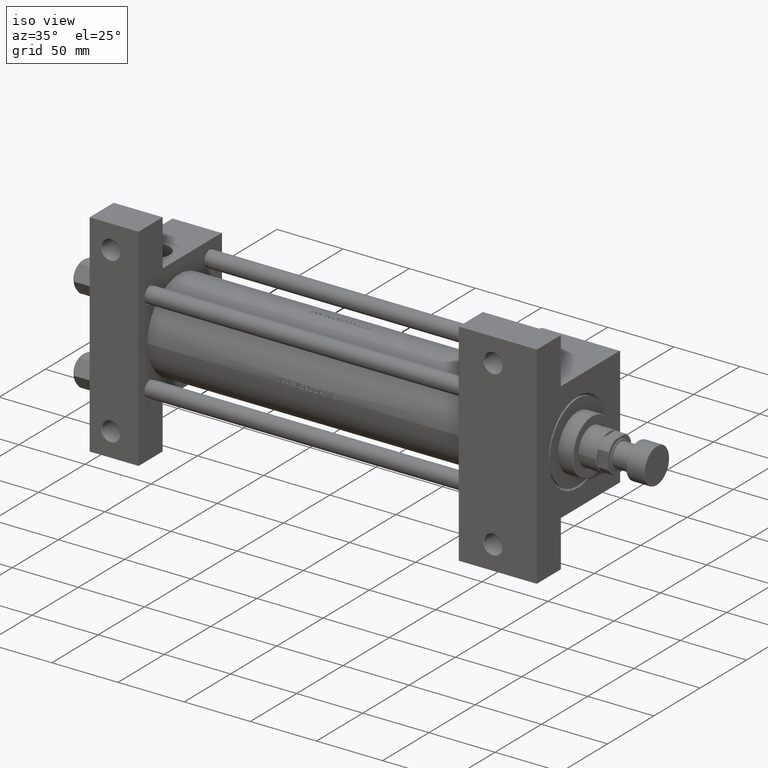
[diagram: clean part render]
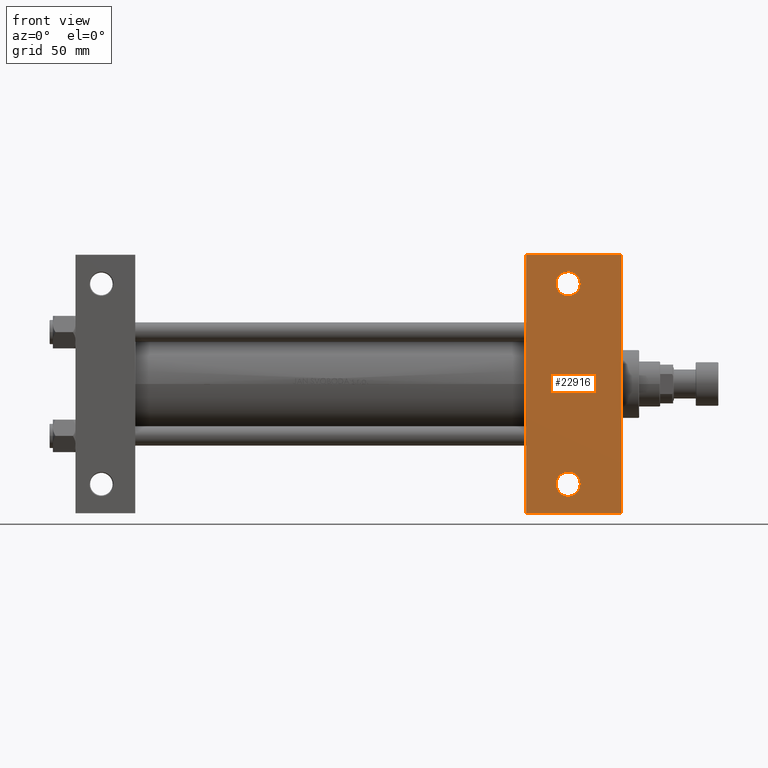
[diagram: tour spotlight — one face highlighted and labeled with its STEP entity id]
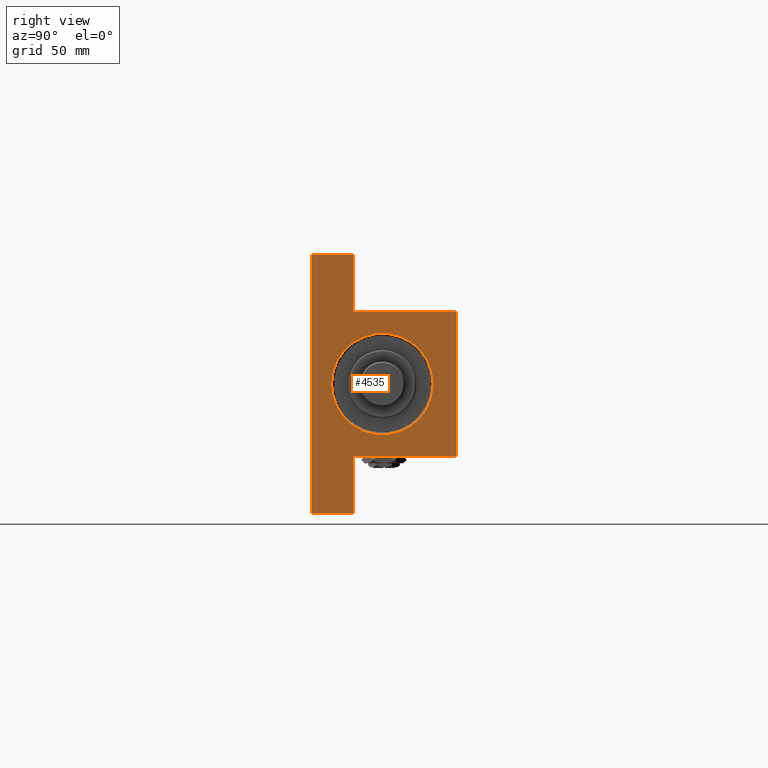
[diagram: tour spotlight — one face highlighted and labeled with its STEP entity id]
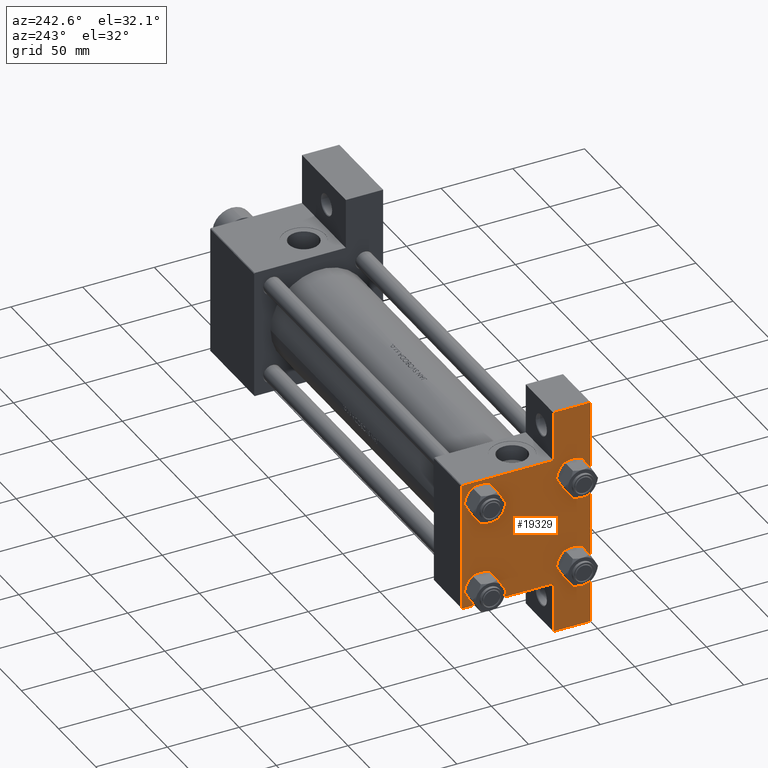
[diagram: tour spotlight — one face highlighted and labeled with its STEP entity id]
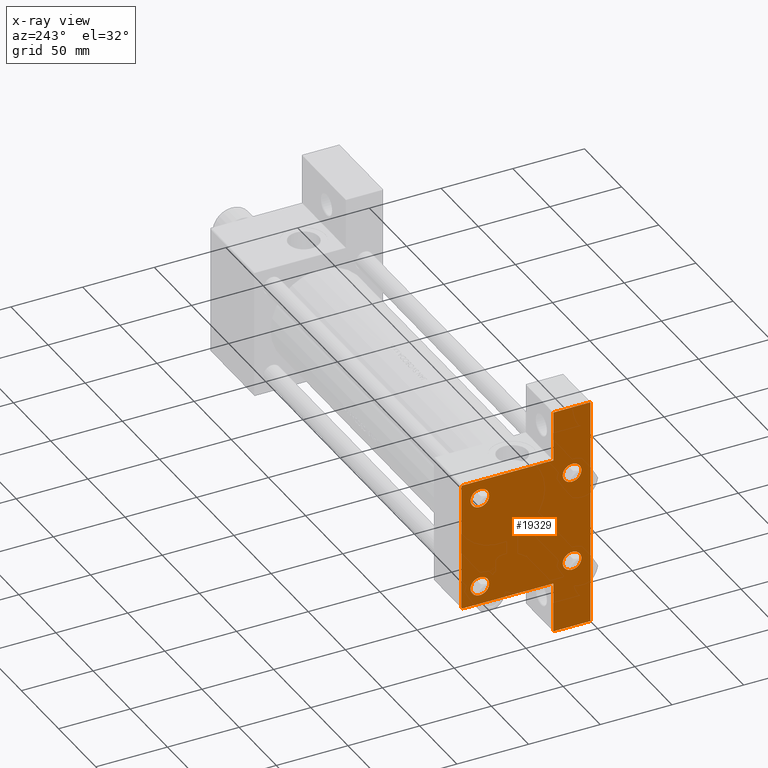
[diagram: x-ray of the same camera — body ghosted, this tour face saturated]
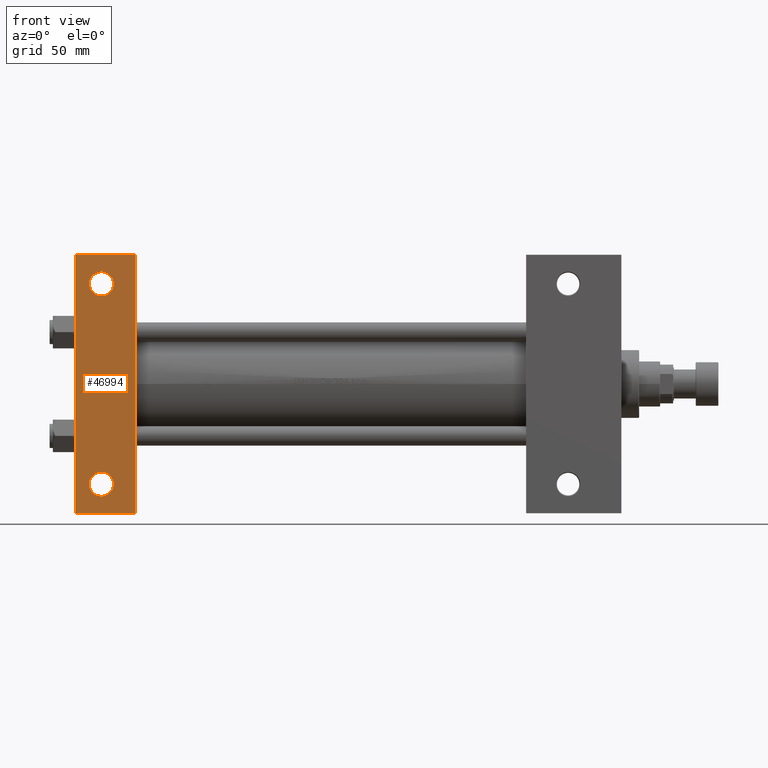
[diagram: tour spotlight — one face highlighted and labeled with its STEP entity id]
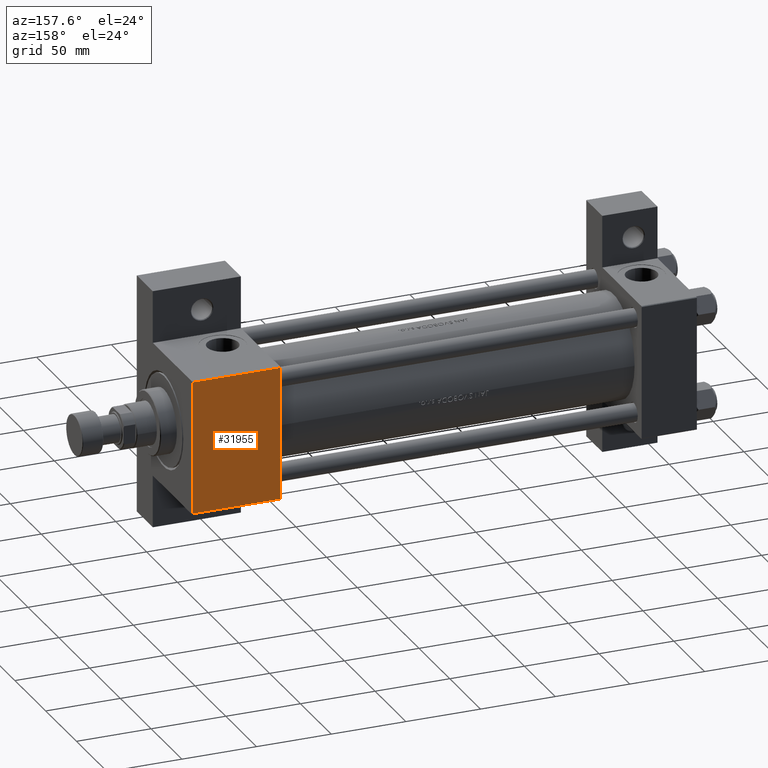
[diagram: tour spotlight — one face highlighted and labeled with its STEP entity id]
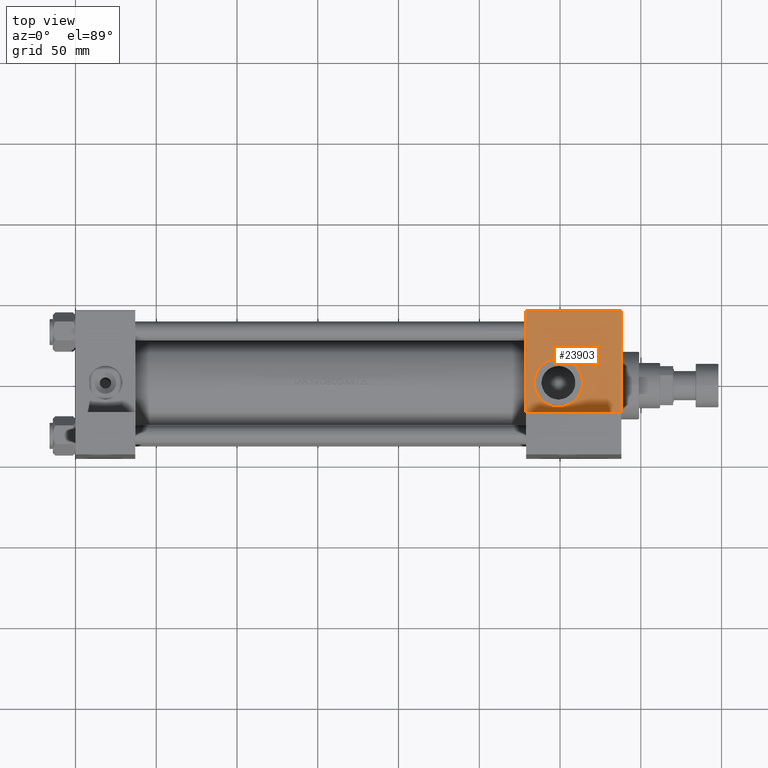
[diagram: tour spotlight — one face highlighted and labeled with its STEP entity id]
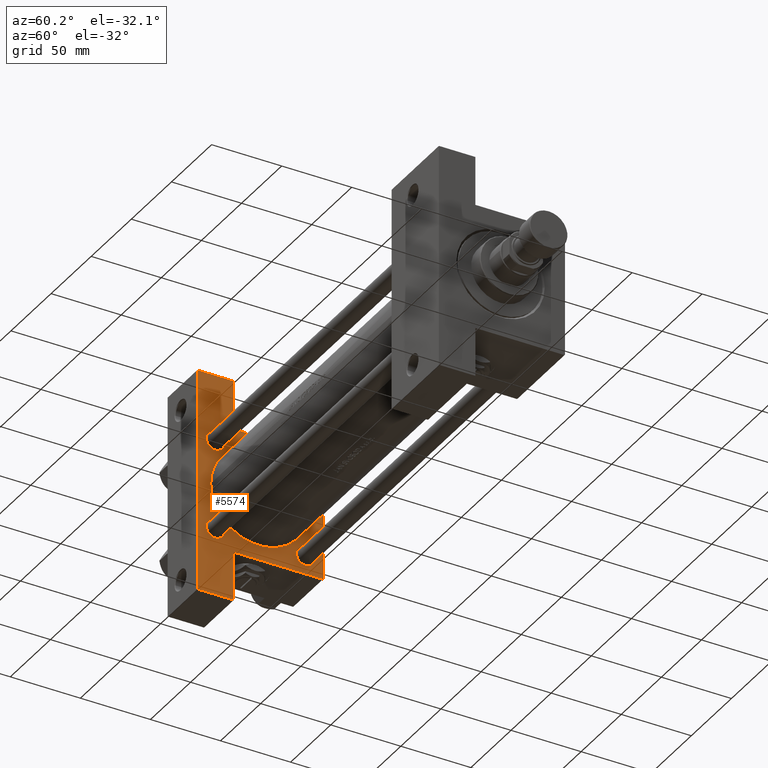
[diagram: tour spotlight — one face highlighted and labeled with its STEP entity id]
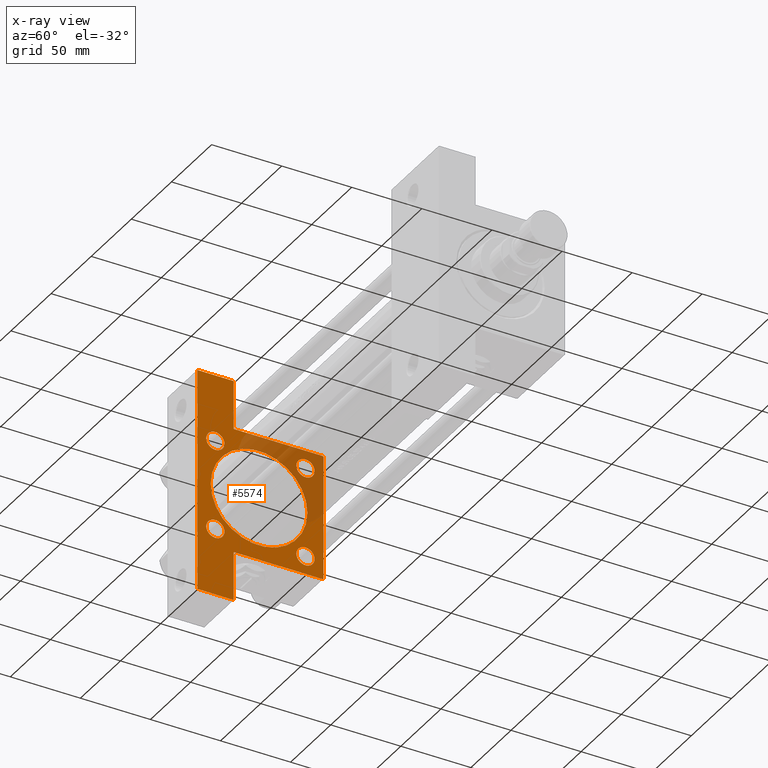
[diagram: x-ray of the same camera — body ghosted, this tour face saturated]
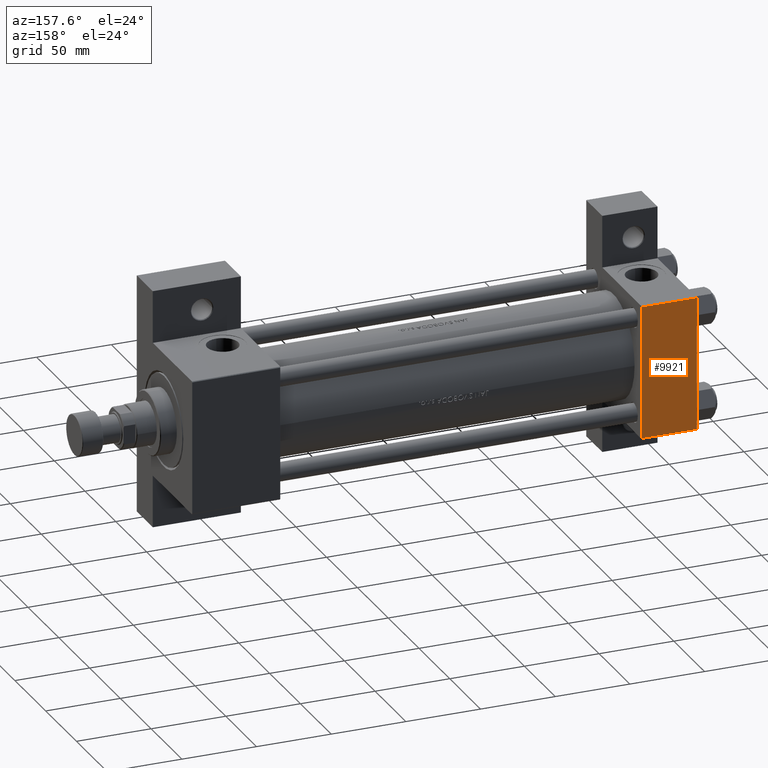
[diagram: tour spotlight — one face highlighted and labeled with its STEP entity id]
A machine part: a face-by-face anatomy tour. The part has 1198 B-rep faces; the first image is the clean iso view, then the 8 largest visible faces are spotlighted one at a time (largest first), each with its STEP entity span.

Face 1 — front view, entity #22916. In plain terms, the highlighted planar face has unit normal (0, -1, 0).
Definition (entity closure, byte-faithful):
#906 = CARTESIAN_POINT ( 'NONE',  ( 337.9999999999999432, 45.00000000000001421, -45.00000000000000000 ) ) ;
#909 = EDGE_LOOP ( 'NONE', ( #28196, #43155 ) ) ;
#1128 = EDGE_CURVE ( 'NONE', #45505, #3936, #35851, .T. ) ;
#2808 = CARTESIAN_POINT ( 'NONE',  ( 278.9999999999999432, -80.00000000000001421, -45.00000000000000000 ) ) ;
#3285 = CARTESIAN_POINT ( 'NONE',  ( 278.9999999999999432, 45.00000000000001421, -45.00000000000000000 ) ) ;
#3604 = VERTEX_POINT ( 'NONE', #33810 ) ;
#3936 = VERTEX_POINT ( 'NONE', #44665 ) ;
#4919 = CARTESIAN_POINT ( 'NONE',  ( 312.4994999999999550, 62.00000000000000711, -45.00000000000000000 ) ) ;
#5128 = VECTOR ( 'NONE', #5202, 1000.000000000000000 ) ;
#5202 = DIRECTION ( 'NONE',  ( 0.000000000000000000, -1.000000000000000000, 0.000000000000000000 ) ) ;
#5215 = CARTESIAN_POINT ( 'NONE',  ( 297.5004999999999313, -62.00000000000000000, -45.00000000000000000 ) ) ;
#5684 = FACE_BOUND ( 'NONE', #21324, .T. ) ;
#5908 = AXIS2_PLACEMENT_3D ( 'NONE', #15289, #26451, #10735 ) ;
#5927 = PLANE ( 'NONE',  #12061 ) ;
#7225 = ORIENTED_EDGE ( 'NONE', *, *, #28361, .T. ) ;
#8008 = CARTESIAN_POINT ( 'NONE',  ( 278.9999999999999432, 79.99999999999995737, -45.00000000000000000 ) ) ;
#8301 = DIRECTION ( 'NONE',  ( -1.000000000000000000, 4.704334850106595794E-16, -0.000000000000000000 ) ) ;
#8721 = CARTESIAN_POINT ( 'NONE',  ( 305.0000000000000000, 62.00000000000000711, -45.00000000000000000 ) ) ;
#9991 = CARTESIAN_POINT ( 'NONE',  ( 337.9999999999999432, 45.00000000000001421, -45.00000000000000000 ) ) ;
#10025 = ORIENTED_EDGE ( 'NONE', *, *, #15019, .T. ) ;
#10322 = AXIS2_PLACEMENT_3D ( 'NONE', #27133, #15472, #43081 ) ;
#10691 = EDGE_CURVE ( 'NONE', #36422, #20065, #21813, .T. ) ;
#10735 = DIRECTION ( 'NONE',  ( -1.000000000000000000, 0.000000000000000000, 0.000000000000000000 ) ) ;
#10930 = DIRECTION ( 'NONE',  ( -0.000000000000000000, -0.000000000000000000, 1.000000000000000000 ) ) ;
#11990 = ORIENTED_EDGE ( 'NONE', *, *, #1128, .T. ) ;
#12061 = AXIS2_PLACEMENT_3D ( 'NONE', #9991, #36576, #21405 ) ;
#13786 = CARTESIAN_POINT ( 'NONE',  ( 337.9999999999999432, 79.99999999999998579, -45.00000000000000000 ) ) ;
#14246 = VERTEX_POINT ( 'NONE', #4919 ) ;
#14747 = DIRECTION ( 'NONE',  ( -1.000000000000000000, 0.000000000000000000, 0.000000000000000000 ) ) ;
#15019 = EDGE_CURVE ( 'NONE', #48168, #3604, #28956, .T. ) ;
#15289 = CARTESIAN_POINT ( 'NONE',  ( 304.9999999999999432, -62.00000000000000000, -45.00000000000000000 ) ) ;
#15472 = DIRECTION ( 'NONE',  ( -0.000000000000000000, -0.000000000000000000, 1.000000000000000000 ) ) ;
#18761 = DIRECTION ( 'NONE',  ( 0.000000000000000000, -1.000000000000000000, 0.000000000000000000 ) ) ;
#19560 = CIRCLE ( 'NONE', #32480, 7.499499999999937216 ) ;
#20065 = VERTEX_POINT ( 'NONE', #2808 ) ;
#20933 = EDGE_CURVE ( 'NONE', #3936, #20065, #35154, .T. ) ;
#21158 = FACE_OUTER_BOUND ( 'NONE', #25560, .T. ) ;
#21324 = EDGE_LOOP ( 'NONE', ( #10025, #40493 ) ) ;
#21405 = DIRECTION ( 'NONE',  ( -1.000000000000000000, 0.000000000000000000, -0.000000000000000000 ) ) ;
#21813 = LINE ( 'NONE', #3285, #27996 ) ;
#22916 = ADVANCED_FACE ( 'NONE', ( #28510, #5684, #21158 ), #5927, .T. ) ;
#24198 = DIRECTION ( 'NONE',  ( -0.000000000000000000, -0.000000000000000000, 1.000000000000000000 ) ) ;
#24903 = CARTESIAN_POINT ( 'NONE',  ( 278.9999999999999432, 79.99999999999995737, -45.00000000000000000 ) ) ;
#25560 = EDGE_LOOP ( 'NONE', ( #37419, #7225, #11990, #37536 ) ) ;
#26023 = VECTOR ( 'NONE', #34353, 1000.000000000000000 ) ;
#26090 = AXIS2_PLACEMENT_3D ( 'NONE', #8721, #24198, #32029 ) ;
#26451 = DIRECTION ( 'NONE',  ( -0.000000000000000000, -0.000000000000000000, 1.000000000000000000 ) ) ;
#27133 = CARTESIAN_POINT ( 'NONE',  ( 304.9999999999999432, -62.00000000000000000, -45.00000000000000000 ) ) ;
#27996 = VECTOR ( 'NONE', #18761, 1000.000000000000000 ) ;
#28196 = ORIENTED_EDGE ( 'NONE', *, *, #28796, .T. ) ;
#28361 = EDGE_CURVE ( 'NONE', #36422, #45505, #42730, .T. ) ;
#28510 = FACE_BOUND ( 'NONE', #909, .T. ) ;
#28796 = EDGE_CURVE ( 'NONE', #37365, #14246, #19560, .T. ) ;
#28956 = CIRCLE ( 'NONE', #10322, 7.499499999999992284 ) ;
#29309 = CARTESIAN_POINT ( 'NONE',  ( 297.5005000000000450, 62.00000000000000711, -45.00000000000000000 ) ) ;
#30555 = EDGE_CURVE ( 'NONE', #14246, #37365, #31734, .T. ) ;
#30597 = VECTOR ( 'NONE', #8301, 1000.000000000000000 ) ;
#31734 = CIRCLE ( 'NONE', #26090, 7.499499999999937216 ) ;
#32029 = DIRECTION ( 'NONE',  ( -1.000000000000000000, 0.000000000000000000, 0.000000000000000000 ) ) ;
#32480 = AXIS2_PLACEMENT_3D ( 'NONE', #38270, #10930, #14747 ) ;
#33810 = CARTESIAN_POINT ( 'NONE',  ( 312.4994999999999550, -62.00000000000000000, -45.00000000000000000 ) ) ;
#34353 = DIRECTION ( 'NONE',  ( 1.000000000000000000, 4.704334850106595794E-16, 0.000000000000000000 ) ) ;
#35154 = LINE ( 'NONE', #38953, #30597 ) ;
#35851 = LINE ( 'NONE', #906, #5128 ) ;
#36224 = EDGE_CURVE ( 'NONE', #3604, #48168, #42351, .T. ) ;
#36422 = VERTEX_POINT ( 'NONE', #24903 ) ;
#36576 = DIRECTION ( 'NONE',  ( 0.000000000000000000, 0.000000000000000000, -1.000000000000000000 ) ) ;
#37365 = VERTEX_POINT ( 'NONE', #29309 ) ;
#37419 = ORIENTED_EDGE ( 'NONE', *, *, #10691, .F. ) ;
#37536 = ORIENTED_EDGE ( 'NONE', *, *, #20933, .T. ) ;
#38270 = CARTESIAN_POINT ( 'NONE',  ( 305.0000000000000000, 62.00000000000000711, -45.00000000000000000 ) ) ;
#38953 = CARTESIAN_POINT ( 'NONE',  ( 278.9999999999999432, -80.00000000000001421, -45.00000000000000000 ) ) ;
#40493 = ORIENTED_EDGE ( 'NONE', *, *, #36224, .T. ) ;
#42351 = CIRCLE ( 'NONE', #5908, 7.499499999999992284 ) ;
#42730 = LINE ( 'NONE', #8008, #26023 ) ;
#43081 = DIRECTION ( 'NONE',  ( -1.000000000000000000, 0.000000000000000000, 0.000000000000000000 ) ) ;
#43155 = ORIENTED_EDGE ( 'NONE', *, *, #30555, .T. ) ;
#44665 = CARTESIAN_POINT ( 'NONE',  ( 337.9999999999999432, -80.00000000000004263, -45.00000000000000000 ) ) ;
#45505 = VERTEX_POINT ( 'NONE', #13786 ) ;
#48168 = VERTEX_POINT ( 'NONE', #5215 ) ;

Face 2 — right view, entity #4535. In plain terms, the highlighted planar face has unit normal (-1, 0, -0).
Definition (entity closure, byte-faithful):
#206 = VECTOR ( 'NONE', #21508, 1000.000000000000114 ) ;
#374 = AXIS2_PLACEMENT_3D ( 'NONE', #26484, #42429, #12280 ) ;
#411 = VERTEX_POINT ( 'NONE', #17058 ) ;
#906 = CARTESIAN_POINT ( 'NONE',  ( 337.9999999999999432, 45.00000000000001421, -45.00000000000000000 ) ) ;
#1128 = EDGE_CURVE ( 'NONE', #45505, #3936, #35851, .T. ) ;
#2663 = CIRCLE ( 'NONE', #34193, 31.49999999999997158 ) ;
#2998 = EDGE_CURVE ( 'NONE', #26801, #45505, #47356, .T. ) ;
#3175 = AXIS2_PLACEMENT_3D ( 'NONE', #30853, #46318, #39445 ) ;
#3936 = VERTEX_POINT ( 'NONE', #44665 ) ;
#4107 = VERTEX_POINT ( 'NONE', #29158 ) ;
#4535 = ADVANCED_FACE ( 'NONE', ( #26237, #6947 ), #37845, .F. ) ;
#4643 = CARTESIAN_POINT ( 'NONE',  ( 337.9999999999999432, -80.00000000000004263, -19.00000000000000000 ) ) ;
#4732 = LINE ( 'NONE', #24737, #30430 ) ;
#5128 = VECTOR ( 'NONE', #5202, 1000.000000000000000 ) ;
#5202 = DIRECTION ( 'NONE',  ( 0.000000000000000000, -1.000000000000000000, 0.000000000000000000 ) ) ;
#6947 = FACE_OUTER_BOUND ( 'NONE', #47727, .T. ) ;
#9034 = ORIENTED_EDGE ( 'NONE', *, *, #16820, .T. ) ;
#9434 = CARTESIAN_POINT ( 'NONE',  ( 337.9999999999999432, 3.857637417314158745E-15, 30.49999999999997158 ) ) ;
#10224 = DIRECTION ( 'NONE',  ( 0.000000000000000000, 0.000000000000000000, 1.000000000000000000 ) ) ;
#10369 = EDGE_CURVE ( 'NONE', #26801, #42748, #4732, .T. ) ;
#11325 = VECTOR ( 'NONE', #32028, 1000.000000000000000 ) ;
#11968 = ORIENTED_EDGE ( 'NONE', *, *, #25540, .F. ) ;
#12280 = DIRECTION ( 'NONE',  ( -0.000000000000000000, 0.000000000000000000, 1.000000000000000000 ) ) ;
#12648 = CARTESIAN_POINT ( 'NONE',  ( 337.9999999999999432, 79.99999999999998579, -19.00000000000000000 ) ) ;
#13786 = CARTESIAN_POINT ( 'NONE',  ( 337.9999999999999432, 79.99999999999998579, -45.00000000000000000 ) ) ;
#13797 = CARTESIAN_POINT ( 'NONE',  ( 337.9999999999999432, 0.000000000000000000, -1.000000000000000888 ) ) ;
#14069 = CARTESIAN_POINT ( 'NONE',  ( 337.9999999999999432, 44.99999999999992895, -19.00000000000000000 ) ) ;
#14102 = VECTOR ( 'NONE', #31391, 1000.000000000000000 ) ;
#14469 = ORIENTED_EDGE ( 'NONE', *, *, #10369, .T. ) ;
#15929 = VERTEX_POINT ( 'NONE', #30484 ) ;
#16089 = LINE ( 'NONE', #27988, #11325 ) ;
#16656 = DIRECTION ( 'NONE',  ( 0.000000000000000000, -1.000000000000000000, 0.000000000000000000 ) ) ;
#16814 = VECTOR ( 'NONE', #34661, 1000.000000000000114 ) ;
#16820 = EDGE_CURVE ( 'NONE', #411, #27443, #46209, .T. ) ;
#17058 = CARTESIAN_POINT ( 'NONE',  ( 337.9999999999999432, 44.49999999999995737, 45.00000000000000000 ) ) ;
#18207 = VERTEX_POINT ( 'NONE', #18959 ) ;
#18959 = CARTESIAN_POINT ( 'NONE',  ( 337.9999999999999432, -44.99999999999999289, -18.99999999999997513 ) ) ;
#19108 = CARTESIAN_POINT ( 'NONE',  ( 337.9999999999999432, -45.00000000000000000, 44.99999999999998579 ) ) ;
#19234 = LINE ( 'NONE', #34907, #16814 ) ;
#19331 = EDGE_CURVE ( 'NONE', #22390, #4107, #50110, .T. ) ;
#19678 = ORIENTED_EDGE ( 'NONE', *, *, #42085, .T. ) ;
#20116 = DIRECTION ( 'NONE',  ( -0.000000000000000000, -1.000000000000000000, -0.000000000000000000 ) ) ;
#20153 = VECTOR ( 'NONE', #26960, 1000.000000000000000 ) ;
#20958 = DIRECTION ( 'NONE',  ( 0.000000000000000000, 0.000000000000000000, -1.000000000000000000 ) ) ;
#21508 = DIRECTION ( 'NONE',  ( 0.000000000000000000, -0.7071067811865474617, 0.7071067811865474617 ) ) ;
#22306 = VECTOR ( 'NONE', #42656, 1000.000000000000000 ) ;
#22390 = VERTEX_POINT ( 'NONE', #9434 ) ;
#23909 = LINE ( 'NONE', #4643, #40708 ) ;
#24737 = CARTESIAN_POINT ( 'NONE',  ( 337.9999999999999432, 79.99999999999998579, -19.00000000000000000 ) ) ;
#24939 = ORIENTED_EDGE ( 'NONE', *, *, #34825, .T. ) ;
#25254 = CARTESIAN_POINT ( 'NONE',  ( 337.9999999999999432, -80.00000000000004263, -19.00000000000000000 ) ) ;
#25540 = EDGE_CURVE ( 'NONE', #47887, #42748, #16089, .T. ) ;
#26237 = FACE_BOUND ( 'NONE', #46885, .T. ) ;
#26484 = CARTESIAN_POINT ( 'NONE',  ( 337.9999999999999432, 0.000000000000000000, 0.000000000000000000 ) ) ;
#26745 = CARTESIAN_POINT ( 'NONE',  ( 337.9999999999999432, -44.49999999999997158, 44.99999999999998579 ) ) ;
#26801 = VERTEX_POINT ( 'NONE', #45615 ) ;
#26960 = DIRECTION ( 'NONE',  ( 0.000000000000000000, -1.000000000000000000, -1.541976423090495140E-16 ) ) ;
#27443 = VERTEX_POINT ( 'NONE', #26745 ) ;
#27988 = CARTESIAN_POINT ( 'NONE',  ( 337.9999999999999432, 45.00000000000001421, 45.00000000000000000 ) ) ;
#29158 = CARTESIAN_POINT ( 'NONE',  ( 337.9999999999999432, 0.000000000000000000, -32.49999999999997158 ) ) ;
#30430 = VECTOR ( 'NONE', #16656, 1000.000000000000000 ) ;
#30484 = CARTESIAN_POINT ( 'NONE',  ( 337.9999999999999432, -80.00000000000004263, -19.00000000000000000 ) ) ;
#30552 = ORIENTED_EDGE ( 'NONE', *, *, #36407, .T. ) ;
#30853 = CARTESIAN_POINT ( 'NONE',  ( 337.9999999999999432, 0.000000000000000000, -1.000000000000000888 ) ) ;
#31391 = DIRECTION ( 'NONE',  ( 0.000000000000000000, 0.000000000000000000, -1.000000000000000000 ) ) ;
#32028 = DIRECTION ( 'NONE',  ( 0.000000000000000000, 0.000000000000000000, -1.000000000000000000 ) ) ;
#32776 = DIRECTION ( 'NONE',  ( -1.000000000000000000, -0.000000000000000000, -0.000000000000000000 ) ) ;
#33933 = ORIENTED_EDGE ( 'NONE', *, *, #35104, .T. ) ;
#34159 = VECTOR ( 'NONE', #20958, 1000.000000000000000 ) ;
#34193 = AXIS2_PLACEMENT_3D ( 'NONE', #13797, #32776, #10224 ) ;
#34449 = EDGE_CURVE ( 'NONE', #47887, #411, #37189, .T. ) ;
#34468 = CARTESIAN_POINT ( 'NONE',  ( 337.9999999999999432, -45.00000000000000000, 44.49999999999998579 ) ) ;
#34661 = DIRECTION ( 'NONE',  ( -0.000000000000000000, -0.7071067811865474617, -0.7071067811865474617 ) ) ;
#34825 = EDGE_CURVE ( 'NONE', #15929, #3936, #40937, .T. ) ;
#34907 = CARTESIAN_POINT ( 'NONE',  ( 337.9999999999999432, -45.00000000000000000, 44.49999999999998579 ) ) ;
#35104 = EDGE_CURVE ( 'NONE', #4107, #22390, #2663, .T. ) ;
#35191 = ORIENTED_EDGE ( 'NONE', *, *, #1128, .F. ) ;
#35851 = LINE ( 'NONE', #906, #5128 ) ;
#36071 = ORIENTED_EDGE ( 'NONE', *, *, #47021, .T. ) ;
#36407 = EDGE_CURVE ( 'NONE', #18207, #15929, #23909, .T. ) ;
#36501 = VERTEX_POINT ( 'NONE', #34468 ) ;
#37189 = LINE ( 'NONE', #37676, #206 ) ;
#37510 = ORIENTED_EDGE ( 'NONE', *, *, #34449, .T. ) ;
#37676 = CARTESIAN_POINT ( 'NONE',  ( 337.9999999999999432, 44.49999999999995737, 45.00000000000000000 ) ) ;
#37705 = LINE ( 'NONE', #19108, #22306 ) ;
#37845 = PLANE ( 'NONE',  #374 ) ;
#39445 = DIRECTION ( 'NONE',  ( 0.000000000000000000, 0.000000000000000000, 1.000000000000000000 ) ) ;
#40708 = VECTOR ( 'NONE', #20116, 1000.000000000000000 ) ;
#40937 = LINE ( 'NONE', #25254, #34159 ) ;
#42085 = EDGE_CURVE ( 'NONE', #36501, #18207, #37705, .T. ) ;
#42429 = DIRECTION ( 'NONE',  ( -1.000000000000000000, 0.000000000000000000, -0.000000000000000000 ) ) ;
#42656 = DIRECTION ( 'NONE',  ( 0.000000000000000000, 7.709882115452478166E-17, -1.000000000000000000 ) ) ;
#42748 = VERTEX_POINT ( 'NONE', #14069 ) ;
#44665 = CARTESIAN_POINT ( 'NONE',  ( 337.9999999999999432, -80.00000000000004263, -45.00000000000000000 ) ) ;
#45505 = VERTEX_POINT ( 'NONE', #13786 ) ;
#45615 = CARTESIAN_POINT ( 'NONE',  ( 337.9999999999999432, 79.99999999999998579, -19.00000000000000000 ) ) ;
#45951 = CARTESIAN_POINT ( 'NONE',  ( 337.9999999999999432, 45.00000000000001421, 45.00000000000000000 ) ) ;
#46209 = LINE ( 'NONE', #45951, #20153 ) ;
#46318 = DIRECTION ( 'NONE',  ( -1.000000000000000000, -0.000000000000000000, -0.000000000000000000 ) ) ;
#46767 = ORIENTED_EDGE ( 'NONE', *, *, #19331, .T. ) ;
#46885 = EDGE_LOOP ( 'NONE', ( #33933, #46767 ) ) ;
#47021 = EDGE_CURVE ( 'NONE', #27443, #36501, #19234, .T. ) ;
#47356 = LINE ( 'NONE', #12648, #14102 ) ;
#47373 = ORIENTED_EDGE ( 'NONE', *, *, #2998, .F. ) ;
#47727 = EDGE_LOOP ( 'NONE', ( #11968, #37510, #9034, #36071, #19678, #30552, #24939, #35191, #47373, #14469 ) ) ;
#47887 = VERTEX_POINT ( 'NONE', #48084 ) ;
#48084 = CARTESIAN_POINT ( 'NONE',  ( 337.9999999999999432, 45.00000000000001421, 44.49999999999994316 ) ) ;
#50110 = CIRCLE ( 'NONE', #3175, 31.49999999999997158 ) ;

Face 3 — auxiliary view, entity #19329. An x-ray twin of the same camera follows (body ghosted, this face saturated) — the face is partly hidden behind the body. In plain terms, the highlighted planar face has unit normal (-1, 0, -0).
Definition (entity closure, byte-faithful):
#747 = VERTEX_POINT ( 'NONE', #6302 ) ;
#1562 = CARTESIAN_POINT ( 'NONE',  ( 3.977209754999744743E-16, -79.99999999999997158, -18.99999999999999645 ) ) ;
#1879 = EDGE_LOOP ( 'NONE', ( #31118, #48427 ) ) ;
#1912 = ORIENTED_EDGE ( 'NONE', *, *, #17007, .T. ) ;
#2047 = DIRECTION ( 'NONE',  ( 3.177974565193930867E-17, -1.000000000000000000, 0.000000000000000000 ) ) ;
#2584 = DIRECTION ( 'NONE',  ( 1.000000000000000000, -0.000000000000000000, 0.000000000000000000 ) ) ;
#2773 = VERTEX_POINT ( 'NONE', #47666 ) ;
#3222 = VERTEX_POINT ( 'NONE', #33373 ) ;
#3710 = AXIS2_PLACEMENT_3D ( 'NONE', #35726, #15487, #27148 ) ;
#3741 = LINE ( 'NONE', #23009, #44461 ) ;
#3908 = VECTOR ( 'NONE', #5352, 1000.000000000000000 ) ;
#3984 = VECTOR ( 'NONE', #28826, 1000.000000000000000 ) ;
#4420 = LINE ( 'NONE', #4681, #39543 ) ;
#4681 = CARTESIAN_POINT ( 'NONE',  ( -0.000000000000000000, -44.75000000000029843, 44.74999999999967315 ) ) ;
#5352 = DIRECTION ( 'NONE',  ( 0.000000000000000000, -1.000000000000000000, -1.541976423090495633E-16 ) ) ;
#5389 = CARTESIAN_POINT ( 'NONE',  ( 0.000000000000000000, -32.14999999999997726, -38.64999999999999147 ) ) ;
#5634 = DIRECTION ( 'NONE',  ( 1.000000000000000000, -0.000000000000000000, 0.000000000000000000 ) ) ;
#5886 = DIRECTION ( 'NONE',  ( 0.000000000000000000, 0.000000000000000000, 1.000000000000000000 ) ) ;
#6066 = EDGE_CURVE ( 'NONE', #39443, #42118, #49782, .T. ) ;
#6133 = ORIENTED_EDGE ( 'NONE', *, *, #20091, .T. ) ;
#6302 = CARTESIAN_POINT ( 'NONE',  ( 1.999206976185762377E-14, 80.00000000000001421, -18.99999999999999645 ) ) ;
#6472 = EDGE_CURVE ( 'NONE', #42118, #39443, #39293, .T. ) ;
#6483 = EDGE_CURVE ( 'NONE', #12101, #40675, #17477, .T. ) ;
#6729 = CARTESIAN_POINT ( 'NONE',  ( -7.145701223179003060E-16, -45.00000000000000711, -18.99999999999999645 ) ) ;
#6954 = ORIENTED_EDGE ( 'NONE', *, *, #17512, .T. ) ;
#7024 = DIRECTION ( 'NONE',  ( 0.000000000000000000, 0.000000000000000000, 1.000000000000000000 ) ) ;
#8792 = AXIS2_PLACEMENT_3D ( 'NONE', #35419, #15933, #23789 ) ;
#8805 = CIRCLE ( 'NONE', #45193, 6.500000000000019540 ) ;
#9151 = CARTESIAN_POINT ( 'NONE',  ( 0.000000000000000000, 44.99999999999998579, -44.99999999999998579 ) ) ;
#9427 = EDGE_CURVE ( 'NONE', #2773, #11346, #35350, .T. ) ;
#9559 = CARTESIAN_POINT ( 'NONE',  ( 0.000000000000000000, 32.14999999999999147, -32.15000000000000568 ) ) ;
#9640 = ORIENTED_EDGE ( 'NONE', *, *, #12874, .F. ) ;
#9677 = CARTESIAN_POINT ( 'NONE',  ( 0.000000000000000000, -32.14999999999997726, 38.65000000000003411 ) ) ;
#10435 = DIRECTION ( 'NONE',  ( 0.000000000000000000, 0.000000000000000000, 1.000000000000000000 ) ) ;
#10460 = AXIS2_PLACEMENT_3D ( 'NONE', #15162, #38433, #19224 ) ;
#10786 = EDGE_LOOP ( 'NONE', ( #11969, #30292 ) ) ;
#11096 = FACE_BOUND ( 'NONE', #10786, .T. ) ;
#11346 = VERTEX_POINT ( 'NONE', #38353 ) ;
#11969 = ORIENTED_EDGE ( 'NONE', *, *, #6472, .T. ) ;
#12101 = VERTEX_POINT ( 'NONE', #9677 ) ;
#12756 = CARTESIAN_POINT ( 'NONE',  ( 0.000000000000000000, -32.14999999999997726, 25.64999999999999147 ) ) ;
#12874 = EDGE_CURVE ( 'NONE', #31436, #47709, #17138, .T. ) ;
#12974 = LINE ( 'NONE', #9151, #3908 ) ;
#13303 = CARTESIAN_POINT ( 'NONE',  ( 0.000000000000000000, 44.99999999999998579, -18.99999999999997513 ) ) ;
#13372 = ORIENTED_EDGE ( 'NONE', *, *, #23505, .F. ) ;
#13377 = CARTESIAN_POINT ( 'NONE',  ( 0.000000000000000000, -32.14999999999997726, 32.15000000000001279 ) ) ;
#13783 = DIRECTION ( 'NONE',  ( 0.000000000000000000, 7.709882115452476934E-17, -1.000000000000000000 ) ) ;
#14460 = VECTOR ( 'NONE', #13783, 1000.000000000000000 ) ;
#14496 = CARTESIAN_POINT ( 'NONE',  ( 0.000000000000000000, -32.14999999999997726, 32.15000000000001279 ) ) ;
#15162 = CARTESIAN_POINT ( 'NONE',  ( 0.000000000000000000, 0.000000000000000000, 0.000000000000000000 ) ) ;
#15487 = DIRECTION ( 'NONE',  ( 1.000000000000000000, -0.000000000000000000, 0.000000000000000000 ) ) ;
#15933 = DIRECTION ( 'NONE',  ( 1.000000000000000000, -0.000000000000000000, 0.000000000000000000 ) ) ;
#16856 = DIRECTION ( 'NONE',  ( -0.000000000000000000, 0.7071067811865425767, 0.7071067811865524577 ) ) ;
#17007 = EDGE_CURVE ( 'NONE', #40675, #12101, #8805, .T. ) ;
#17138 = LINE ( 'NONE', #31836, #20797 ) ;
#17364 = VERTEX_POINT ( 'NONE', #30529 ) ;
#17477 = CIRCLE ( 'NONE', #27167, 6.500000000000019540 ) ;
#17512 = EDGE_CURVE ( 'NONE', #29040, #29321, #4420, .T. ) ;
#17657 = EDGE_CURVE ( 'NONE', #29040, #19468, #25938, .T. ) ;
#17843 = CARTESIAN_POINT ( 'NONE',  ( 0.000000000000000000, -45.00000000000000711, 45.00000000000000000 ) ) ;
#18172 = ORIENTED_EDGE ( 'NONE', *, *, #44936, .T. ) ;
#18274 = DIRECTION ( 'NONE',  ( 0.000000000000000000, 0.000000000000000000, 1.000000000000000000 ) ) ;
#18453 = DIRECTION ( 'NONE',  ( 1.000000000000000000, -0.000000000000000000, 0.000000000000000000 ) ) ;
#18967 = FACE_OUTER_BOUND ( 'NONE', #21388, .T. ) ;
#19224 = DIRECTION ( 'NONE',  ( -0.000000000000000000, 0.000000000000000000, 1.000000000000000000 ) ) ;
#19329 = ADVANCED_FACE ( 'NONE', ( #29862, #34143, #11096, #26570, #18967 ), #45322, .T. ) ;
#19341 = CIRCLE ( 'NONE', #8792, 6.499999999999977796 ) ;
#19468 = VERTEX_POINT ( 'NONE', #6729 ) ;
#20091 = EDGE_CURVE ( 'NONE', #747, #17364, #3741, .T. ) ;
#20684 = DIRECTION ( 'NONE',  ( 0.000000000000000000, -1.734723475976806848E-16, -1.000000000000000000 ) ) ;
#20797 = VECTOR ( 'NONE', #20684, 1000.000000000000000 ) ;
#21222 = CARTESIAN_POINT ( 'NONE',  ( 1.999206976185762692E-14, 80.00000000000002842, -18.99999999999999645 ) ) ;
#21298 = ORIENTED_EDGE ( 'NONE', *, *, #26686, .F. ) ;
#21320 = LINE ( 'NONE', #1562, #44535 ) ;
#21388 = EDGE_LOOP ( 'NONE', ( #36329, #6954, #25486, #29663, #41406, #13372, #6133, #33047, #9640, #21298 ) ) ;
#21744 = EDGE_CURVE ( 'NONE', #3222, #38616, #19341, .T. ) ;
#21949 = LINE ( 'NONE', #32346, #46417 ) ;
#22735 = CARTESIAN_POINT ( 'NONE',  ( 0.000000000000000000, -44.49999999999995737, 45.00000000000000000 ) ) ;
#23009 = CARTESIAN_POINT ( 'NONE',  ( 1.999206976185762377E-14, 80.00000000000002842, 31.93132631298737678 ) ) ;
#23505 = EDGE_CURVE ( 'NONE', #747, #37521, #40704, .T. ) ;
#23789 = DIRECTION ( 'NONE',  ( 0.000000000000000000, 0.000000000000000000, 1.000000000000000000 ) ) ;
#23971 = DIRECTION ( 'NONE',  ( 0.000000000000000000, 0.7071067811865474617, -0.7071067811865474617 ) ) ;
#25486 = ORIENTED_EDGE ( 'NONE', *, *, #37463, .F. ) ;
#25499 = DIRECTION ( 'NONE',  ( 0.000000000000000000, 0.000000000000000000, -1.000000000000000000 ) ) ;
#25505 = CARTESIAN_POINT ( 'NONE',  ( 0.000000000000000000, 32.14999999999999147, -38.64999999999998437 ) ) ;
#25557 = CARTESIAN_POINT ( 'NONE',  ( 0.000000000000000000, 32.14999999999999147, 32.15000000000000568 ) ) ;
#25921 = VERTEX_POINT ( 'NONE', #41799 ) ;
#25938 = LINE ( 'NONE', #17843, #14460 ) ;
#26231 = EDGE_CURVE ( 'NONE', #11346, #2773, #49406, .T. ) ;
#26570 = FACE_BOUND ( 'NONE', #1879, .T. ) ;
#26686 = EDGE_CURVE ( 'NONE', #19468, #31436, #21320, .T. ) ;
#27148 = DIRECTION ( 'NONE',  ( 0.000000000000000000, 0.000000000000000000, 1.000000000000000000 ) ) ;
#27167 = AXIS2_PLACEMENT_3D ( 'NONE', #13377, #47838, #39966 ) ;
#27900 = VECTOR ( 'NONE', #23971, 1000.000000000000114 ) ;
#28123 = ORIENTED_EDGE ( 'NONE', *, *, #6483, .T. ) ;
#28409 = CARTESIAN_POINT ( 'NONE',  ( 0.000000000000000000, -45.00000000000000711, 44.49999999999997158 ) ) ;
#28826 = DIRECTION ( 'NONE',  ( -2.767091054814098392E-16, -1.000000000000000000, 0.000000000000000000 ) ) ;
#29040 = VERTEX_POINT ( 'NONE', #28409 ) ;
#29216 = CARTESIAN_POINT ( 'NONE',  ( 0.000000000000000000, 32.14999999999999147, 32.15000000000000568 ) ) ;
#29321 = VERTEX_POINT ( 'NONE', #22735 ) ;
#29663 = ORIENTED_EDGE ( 'NONE', *, *, #38314, .T. ) ;
#29862 = FACE_BOUND ( 'NONE', #33647, .T. ) ;
#30292 = ORIENTED_EDGE ( 'NONE', *, *, #6066, .T. ) ;
#30529 = CARTESIAN_POINT ( 'NONE',  ( 1.999206976185762377E-14, 80.00000000000001421, -45.00000000000000711 ) ) ;
#30543 = LINE ( 'NONE', #34333, #46444 ) ;
#31118 = ORIENTED_EDGE ( 'NONE', *, *, #26231, .T. ) ;
#31255 = EDGE_LOOP ( 'NONE', ( #36802, #18172 ) ) ;
#31436 = VERTEX_POINT ( 'NONE', #45252 ) ;
#31757 = VERTEX_POINT ( 'NONE', #42127 ) ;
#31836 = CARTESIAN_POINT ( 'NONE',  ( 3.977209754999747208E-16, -79.99999999999997158, 31.93132631298740165 ) ) ;
#32038 = AXIS2_PLACEMENT_3D ( 'NONE', #9559, #36163, #47597 ) ;
#32346 = CARTESIAN_POINT ( 'NONE',  ( 0.000000000000000000, 44.99999999999998579, 45.00000000000001421 ) ) ;
#33047 = ORIENTED_EDGE ( 'NONE', *, *, #49740, .T. ) ;
#33373 = CARTESIAN_POINT ( 'NONE',  ( 0.000000000000000000, -32.14999999999997726, -25.65000000000003411 ) ) ;
#33647 = EDGE_LOOP ( 'NONE', ( #28123, #1912 ) ) ;
#33728 = EDGE_CURVE ( 'NONE', #31757, #37521, #21949, .T. ) ;
#34143 = FACE_BOUND ( 'NONE', #31255, .T. ) ;
#34333 = CARTESIAN_POINT ( 'NONE',  ( 0.000000000000000000, 44.99999999999998579, 45.00000000000001421 ) ) ;
#35350 = CIRCLE ( 'NONE', #43477, 6.499999999999977796 ) ;
#35356 = CIRCLE ( 'NONE', #49106, 6.499999999999977796 ) ;
#35419 = CARTESIAN_POINT ( 'NONE',  ( 0.000000000000000000, -32.14999999999997726, -32.15000000000001279 ) ) ;
#35726 = CARTESIAN_POINT ( 'NONE',  ( 0.000000000000000000, 32.14999999999999147, -32.15000000000000568 ) ) ;
#36163 = DIRECTION ( 'NONE',  ( 1.000000000000000000, -0.000000000000000000, 0.000000000000000000 ) ) ;
#36329 = ORIENTED_EDGE ( 'NONE', *, *, #17657, .F. ) ;
#36802 = ORIENTED_EDGE ( 'NONE', *, *, #21744, .T. ) ;
#37463 = EDGE_CURVE ( 'NONE', #25921, #29321, #30543, .T. ) ;
#37521 = VERTEX_POINT ( 'NONE', #13303 ) ;
#38023 = AXIS2_PLACEMENT_3D ( 'NONE', #25557, #18453, #7024 ) ;
#38173 = DIRECTION ( 'NONE',  ( 0.000000000000000000, -1.734723475976806848E-16, -1.000000000000000000 ) ) ;
#38314 = EDGE_CURVE ( 'NONE', #25921, #31757, #43220, .T. ) ;
#38353 = CARTESIAN_POINT ( 'NONE',  ( 0.000000000000000000, 32.14999999999999147, 38.64999999999999147 ) ) ;
#38433 = DIRECTION ( 'NONE',  ( -1.000000000000000000, 0.000000000000000000, -0.000000000000000000 ) ) ;
#38582 = CARTESIAN_POINT ( 'NONE',  ( 0.000000000000000000, 32.14999999999999147, -25.65000000000002700 ) ) ;
#38616 = VERTEX_POINT ( 'NONE', #5389 ) ;
#39293 = CIRCLE ( 'NONE', #32038, 6.499999999999977796 ) ;
#39443 = VERTEX_POINT ( 'NONE', #25505 ) ;
#39543 = VECTOR ( 'NONE', #16856, 1000.000000000000114 ) ;
#39966 = DIRECTION ( 'NONE',  ( 0.000000000000000000, 0.000000000000000000, 1.000000000000000000 ) ) ;
#40675 = VERTEX_POINT ( 'NONE', #12756 ) ;
#40704 = LINE ( 'NONE', #21222, #3984 ) ;
#41406 = ORIENTED_EDGE ( 'NONE', *, *, #33728, .T. ) ;
#41799 = CARTESIAN_POINT ( 'NONE',  ( 0.000000000000000000, 44.49999999999998579, 45.00000000000001421 ) ) ;
#42032 = CARTESIAN_POINT ( 'NONE',  ( 3.977209754999747208E-16, -79.99999999999998579, -44.99999999999997868 ) ) ;
#42118 = VERTEX_POINT ( 'NONE', #38582 ) ;
#42127 = CARTESIAN_POINT ( 'NONE',  ( 0.000000000000000000, 44.99999999999998579, 44.50000000000001421 ) ) ;
#43220 = LINE ( 'NONE', #47279, #27900 ) ;
#43477 = AXIS2_PLACEMENT_3D ( 'NONE', #29216, #2584, #5886 ) ;
#44120 = DIRECTION ( 'NONE',  ( 1.000000000000000000, -0.000000000000000000, 0.000000000000000000 ) ) ;
#44461 = VECTOR ( 'NONE', #38173, 1000.000000000000000 ) ;
#44535 = VECTOR ( 'NONE', #2047, 1000.000000000000000 ) ;
#44936 = EDGE_CURVE ( 'NONE', #38616, #3222, #35356, .T. ) ;
#45193 = AXIS2_PLACEMENT_3D ( 'NONE', #14496, #5634, #10435 ) ;
#45252 = CARTESIAN_POINT ( 'NONE',  ( 3.977209754999747208E-16, -79.99999999999998579, -18.99999999999999645 ) ) ;
#45322 = PLANE ( 'NONE',  #10460 ) ;
#46417 = VECTOR ( 'NONE', #25499, 1000.000000000000000 ) ;
#46444 = VECTOR ( 'NONE', #49797, 1000.000000000000000 ) ;
#47279 = CARTESIAN_POINT ( 'NONE',  ( 0.000000000000000000, 44.74999999999999289, 44.74999999999999289 ) ) ;
#47597 = DIRECTION ( 'NONE',  ( 0.000000000000000000, 0.000000000000000000, 1.000000000000000000 ) ) ;
#47666 = CARTESIAN_POINT ( 'NONE',  ( 0.000000000000000000, 32.14999999999999147, 25.65000000000002700 ) ) ;
#47709 = VERTEX_POINT ( 'NONE', #42032 ) ;
#47838 = DIRECTION ( 'NONE',  ( 1.000000000000000000, -0.000000000000000000, 0.000000000000000000 ) ) ;
#48169 = CARTESIAN_POINT ( 'NONE',  ( 0.000000000000000000, -32.14999999999997726, -32.15000000000001279 ) ) ;
#48427 = ORIENTED_EDGE ( 'NONE', *, *, #9427, .T. ) ;
#49106 = AXIS2_PLACEMENT_3D ( 'NONE', #48169, #44120, #18274 ) ;
#49406 = CIRCLE ( 'NONE', #38023, 6.499999999999977796 ) ;
#49740 = EDGE_CURVE ( 'NONE', #17364, #47709, #12974, .T. ) ;
#49782 = CIRCLE ( 'NONE', #3710, 6.499999999999977796 ) ;
#49797 = DIRECTION ( 'NONE',  ( 0.000000000000000000, -1.000000000000000000, -1.541976423090495387E-16 ) ) ;

Face 4 — front view, entity #46994. In plain terms, the highlighted planar face has unit normal (0, -1, -0).
Definition (entity closure, byte-faithful):
#502 = CARTESIAN_POINT ( 'NONE',  ( 16.00000000000000000, -62.00000000000002842, -45.00000000000000000 ) ) ;
#1085 = CIRCLE ( 'NONE', #29414, 7.499499999999992284 ) ;
#1208 = VERTEX_POINT ( 'NONE', #47525 ) ;
#3248 = DIRECTION ( 'NONE',  ( 0.000000000000000000, 1.541976423090495880E-16, -1.000000000000000000 ) ) ;
#3578 = EDGE_CURVE ( 'NONE', #1208, #3737, #43254, .T. ) ;
#3737 = VERTEX_POINT ( 'NONE', #4665 ) ;
#3908 = VECTOR ( 'NONE', #5352, 1000.000000000000000 ) ;
#4299 = CIRCLE ( 'NONE', #31846, 7.499499999999992284 ) ;
#4485 = EDGE_CURVE ( 'NONE', #49235, #34987, #14959, .T. ) ;
#4665 = CARTESIAN_POINT ( 'NONE',  ( 8.500500000000007716, -62.00000000000002842, -45.00000000000000000 ) ) ;
#5352 = DIRECTION ( 'NONE',  ( 0.000000000000000000, -1.000000000000000000, -1.541976423090495633E-16 ) ) ;
#6336 = ORIENTED_EDGE ( 'NONE', *, *, #49740, .F. ) ;
#7443 = CARTESIAN_POINT ( 'NONE',  ( 8.500500000000007716, 61.99999999999997158, -44.99999999999998579 ) ) ;
#7815 = ORIENTED_EDGE ( 'NONE', *, *, #36901, .T. ) ;
#9151 = CARTESIAN_POINT ( 'NONE',  ( 0.000000000000000000, 44.99999999999998579, -44.99999999999998579 ) ) ;
#9613 = VECTOR ( 'NONE', #45730, 1000.000000000000000 ) ;
#9980 = DIRECTION ( 'NONE',  ( -0.000000000000000000, -1.541976423090495880E-16, 1.000000000000000000 ) ) ;
#10515 = CARTESIAN_POINT ( 'NONE',  ( 16.00000000000000000, -62.00000000000002842, -45.00000000000000000 ) ) ;
#12431 = DIRECTION ( 'NONE',  ( 0.000000000000000000, 1.000000000000000000, 0.000000000000000000 ) ) ;
#12485 = LINE ( 'NONE', #27943, #20455 ) ;
#12508 = VERTEX_POINT ( 'NONE', #41027 ) ;
#12974 = LINE ( 'NONE', #9151, #3908 ) ;
#13866 = ORIENTED_EDGE ( 'NONE', *, *, #18280, .T. ) ;
#14409 = CARTESIAN_POINT ( 'NONE',  ( 37.00000000000000000, 44.99999999999998579, -44.99999999999998579 ) ) ;
#14820 = DIRECTION ( 'NONE',  ( 0.000000000000000000, 1.000000000000000000, 0.000000000000000000 ) ) ;
#14959 = CIRCLE ( 'NONE', #23879, 7.499499999999992284 ) ;
#15074 = CARTESIAN_POINT ( 'NONE',  ( 1.999206976185762377E-14, 80.00000000000001421, -45.00000000000000711 ) ) ;
#15434 = EDGE_LOOP ( 'NONE', ( #7815, #27118 ) ) ;
#16665 = ORIENTED_EDGE ( 'NONE', *, *, #32628, .T. ) ;
#17364 = VERTEX_POINT ( 'NONE', #30529 ) ;
#18280 = EDGE_CURVE ( 'NONE', #12508, #34514, #26560, .T. ) ;
#19491 = CARTESIAN_POINT ( 'NONE',  ( 37.00000000000000000, 44.99999999999998579, -44.99999999999998579 ) ) ;
#19597 = DIRECTION ( 'NONE',  ( -1.000000000000000000, -0.000000000000000000, -0.000000000000000000 ) ) ;
#20455 = VECTOR ( 'NONE', #19597, 1000.000000000000000 ) ;
#22521 = PLANE ( 'NONE',  #45900 ) ;
#23020 = FACE_OUTER_BOUND ( 'NONE', #35574, .T. ) ;
#23699 = CARTESIAN_POINT ( 'NONE',  ( 23.49949999999999406, 61.99999999999997158, -44.99999999999998579 ) ) ;
#23879 = AXIS2_PLACEMENT_3D ( 'NONE', #38094, #45240, #14820 ) ;
#24700 = DIRECTION ( 'NONE',  ( 0.000000000000000000, 1.000000000000000000, 0.000000000000000000 ) ) ;
#26560 = LINE ( 'NONE', #14409, #32406 ) ;
#27054 = AXIS2_PLACEMENT_3D ( 'NONE', #10515, #29531, #30265 ) ;
#27118 = ORIENTED_EDGE ( 'NONE', *, *, #3578, .T. ) ;
#27943 = CARTESIAN_POINT ( 'NONE',  ( 3.977209754999747208E-16, -79.99999999999998579, -44.99999999999997868 ) ) ;
#28487 = ORIENTED_EDGE ( 'NONE', *, *, #31795, .T. ) ;
#29414 = AXIS2_PLACEMENT_3D ( 'NONE', #502, #38757, #12431 ) ;
#29531 = DIRECTION ( 'NONE',  ( -0.000000000000000000, -1.541976423090495880E-16, 1.000000000000000000 ) ) ;
#30265 = DIRECTION ( 'NONE',  ( 0.000000000000000000, 1.000000000000000000, 0.000000000000000000 ) ) ;
#30529 = CARTESIAN_POINT ( 'NONE',  ( 1.999206976185762377E-14, 80.00000000000001421, -45.00000000000000711 ) ) ;
#30614 = FACE_BOUND ( 'NONE', #15434, .T. ) ;
#31795 = EDGE_CURVE ( 'NONE', #34514, #47709, #12485, .T. ) ;
#31846 = AXIS2_PLACEMENT_3D ( 'NONE', #48500, #9980, #24700 ) ;
#32295 = ORIENTED_EDGE ( 'NONE', *, *, #50033, .T. ) ;
#32406 = VECTOR ( 'NONE', #33892, 1000.000000000000000 ) ;
#32628 = EDGE_CURVE ( 'NONE', #34987, #49235, #4299, .T. ) ;
#33892 = DIRECTION ( 'NONE',  ( 0.000000000000000000, -1.000000000000000000, -1.541976423090495633E-16 ) ) ;
#34514 = VERTEX_POINT ( 'NONE', #34894 ) ;
#34894 = CARTESIAN_POINT ( 'NONE',  ( 37.00000000000000000, -79.99999999999998579, -44.99999999999997868 ) ) ;
#34987 = VERTEX_POINT ( 'NONE', #23699 ) ;
#35574 = EDGE_LOOP ( 'NONE', ( #6336, #32295, #13866, #28487 ) ) ;
#36901 = EDGE_CURVE ( 'NONE', #3737, #1208, #1085, .T. ) ;
#38094 = CARTESIAN_POINT ( 'NONE',  ( 16.00000000000000000, 61.99999999999997158, -44.99999999999998579 ) ) ;
#38757 = DIRECTION ( 'NONE',  ( -0.000000000000000000, -1.541976423090495880E-16, 1.000000000000000000 ) ) ;
#38780 = ORIENTED_EDGE ( 'NONE', *, *, #4485, .T. ) ;
#39498 = EDGE_LOOP ( 'NONE', ( #38780, #16665 ) ) ;
#41027 = CARTESIAN_POINT ( 'NONE',  ( 37.00000000000002132, 80.00000000000001421, -45.00000000000000711 ) ) ;
#41756 = FACE_BOUND ( 'NONE', #39498, .T. ) ;
#42032 = CARTESIAN_POINT ( 'NONE',  ( 3.977209754999747208E-16, -79.99999999999998579, -44.99999999999997868 ) ) ;
#42174 = LINE ( 'NONE', #15074, #9613 ) ;
#43254 = CIRCLE ( 'NONE', #27054, 7.499499999999992284 ) ;
#45240 = DIRECTION ( 'NONE',  ( -0.000000000000000000, -1.541976423090495880E-16, 1.000000000000000000 ) ) ;
#45730 = DIRECTION ( 'NONE',  ( 1.000000000000000000, 0.000000000000000000, 0.000000000000000000 ) ) ;
#45900 = AXIS2_PLACEMENT_3D ( 'NONE', #19491, #3248, #46077 ) ;
#46077 = DIRECTION ( 'NONE',  ( 0.000000000000000000, 1.000000000000000000, 1.541976423090495880E-16 ) ) ;
#46994 = ADVANCED_FACE ( 'NONE', ( #41756, #30614, #23020 ), #22521, .T. ) ;
#47525 = CARTESIAN_POINT ( 'NONE',  ( 23.49949999999999406, -62.00000000000002842, -45.00000000000000000 ) ) ;
#47709 = VERTEX_POINT ( 'NONE', #42032 ) ;
#48500 = CARTESIAN_POINT ( 'NONE',  ( 16.00000000000000000, 61.99999999999997158, -44.99999999999998579 ) ) ;
#49235 = VERTEX_POINT ( 'NONE', #7443 ) ;
#49740 = EDGE_CURVE ( 'NONE', #17364, #47709, #12974, .T. ) ;
#50033 = EDGE_CURVE ( 'NONE', #17364, #12508, #42174, .T. ) ;

Face 5 — auxiliary view, entity #31955. In plain terms, the highlighted planar face has unit normal (0, -1, -0).
Definition (entity closure, byte-faithful):
#411 = VERTEX_POINT ( 'NONE', #17058 ) ;
#1565 = VECTOR ( 'NONE', #2740, 1000.000000000000000 ) ;
#2740 = DIRECTION ( 'NONE',  ( -1.000000000000000000, 0.000000000000000000, 0.000000000000000000 ) ) ;
#2765 = LINE ( 'NONE', #18251, #29586 ) ;
#4827 = VECTOR ( 'NONE', #19603, 1000.000000000000000 ) ;
#6712 = AXIS2_PLACEMENT_3D ( 'NONE', #32965, #20593, #8922 ) ;
#7040 = LINE ( 'NONE', #46069, #1565 ) ;
#8862 = ORIENTED_EDGE ( 'NONE', *, *, #42062, .T. ) ;
#8922 = DIRECTION ( 'NONE',  ( 0.000000000000000000, 1.000000000000000000, 1.541976423090495387E-16 ) ) ;
#10405 = EDGE_LOOP ( 'NONE', ( #36584, #17553, #8862, #20705 ) ) ;
#13230 = FACE_OUTER_BOUND ( 'NONE', #10405, .T. ) ;
#15029 = CARTESIAN_POINT ( 'NONE',  ( 337.9999999999999432, -44.50000000000000000, 44.99999999999998579 ) ) ;
#16820 = EDGE_CURVE ( 'NONE', #411, #27443, #46209, .T. ) ;
#17058 = CARTESIAN_POINT ( 'NONE',  ( 337.9999999999999432, 44.49999999999995737, 45.00000000000000000 ) ) ;
#17553 = ORIENTED_EDGE ( 'NONE', *, *, #19141, .T. ) ;
#18251 = CARTESIAN_POINT ( 'NONE',  ( 278.9999999999999432, 45.00000000000001421, 45.00000000000000000 ) ) ;
#19141 = EDGE_CURVE ( 'NONE', #411, #35643, #7040, .T. ) ;
#19603 = DIRECTION ( 'NONE',  ( 1.000000000000000000, 0.000000000000000000, 0.000000000000000000 ) ) ;
#20153 = VECTOR ( 'NONE', #26960, 1000.000000000000000 ) ;
#20375 = EDGE_CURVE ( 'NONE', #28007, #27443, #23401, .T. ) ;
#20593 = DIRECTION ( 'NONE',  ( 0.000000000000000000, 1.541976423090495387E-16, -1.000000000000000000 ) ) ;
#20705 = ORIENTED_EDGE ( 'NONE', *, *, #20375, .T. ) ;
#23401 = LINE ( 'NONE', #15029, #4827 ) ;
#26745 = CARTESIAN_POINT ( 'NONE',  ( 337.9999999999999432, -44.49999999999997158, 44.99999999999998579 ) ) ;
#26960 = DIRECTION ( 'NONE',  ( 0.000000000000000000, -1.000000000000000000, -1.541976423090495140E-16 ) ) ;
#27443 = VERTEX_POINT ( 'NONE', #26745 ) ;
#28007 = VERTEX_POINT ( 'NONE', #38948 ) ;
#28440 = PLANE ( 'NONE',  #6712 ) ;
#29586 = VECTOR ( 'NONE', #33680, 1000.000000000000000 ) ;
#31955 = ADVANCED_FACE ( 'NONE', ( #13230 ), #28440, .F. ) ;
#32965 = CARTESIAN_POINT ( 'NONE',  ( 337.9999999999999432, 45.00000000000001421, 45.00000000000000000 ) ) ;
#33680 = DIRECTION ( 'NONE',  ( 0.000000000000000000, -1.000000000000000000, -1.541976423090495140E-16 ) ) ;
#35643 = VERTEX_POINT ( 'NONE', #47821 ) ;
#36584 = ORIENTED_EDGE ( 'NONE', *, *, #16820, .F. ) ;
#38948 = CARTESIAN_POINT ( 'NONE',  ( 278.9999999999999432, -44.49999999999997158, 44.99999999999998579 ) ) ;
#42062 = EDGE_CURVE ( 'NONE', #35643, #28007, #2765, .T. ) ;
#45951 = CARTESIAN_POINT ( 'NONE',  ( 337.9999999999999432, 45.00000000000001421, 45.00000000000000000 ) ) ;
#46069 = CARTESIAN_POINT ( 'NONE',  ( 278.9999999999999432, 44.49999999999995737, 45.00000000000000000 ) ) ;
#46209 = LINE ( 'NONE', #45951, #20153 ) ;
#47821 = CARTESIAN_POINT ( 'NONE',  ( 278.9999999999999432, 44.49999999999995737, 45.00000000000000000 ) ) ;

Face 6 — top view, entity #23903. In plain terms, the highlighted planar face has unit normal (0, 0, -1).
Definition (entity closure, byte-faithful):
#734 = CARTESIAN_POINT ( 'NONE',  ( 299.0000000000000000, -45.00000000000000000, -15.00000000000002842 ) ) ;
#1907 = VECTOR ( 'NONE', #33787, 1000.000000000000000 ) ;
#4854 = CARTESIAN_POINT ( 'NONE',  ( 299.0000000000000000, -45.00000000000000000, 15.00000000000002132 ) ) ;
#6131 = ORIENTED_EDGE ( 'NONE', *, *, #36170, .T. ) ;
#6211 = CARTESIAN_POINT ( 'NONE',  ( 337.9999999999999432, -45.00000000000000000, 44.49999999999998579 ) ) ;
#6679 = LINE ( 'NONE', #22157, #47657 ) ;
#9769 = DIRECTION ( 'NONE',  ( -1.000000000000000000, 0.000000000000000000, 0.000000000000000000 ) ) ;
#9826 = VERTEX_POINT ( 'NONE', #734 ) ;
#13519 = EDGE_LOOP ( 'NONE', ( #47410, #49052, #6131, #19663 ) ) ;
#15471 = CARTESIAN_POINT ( 'NONE',  ( 299.0000000000000000, -45.00000000000000000, -3.469446951953614978E-15 ) ) ;
#15662 = AXIS2_PLACEMENT_3D ( 'NONE', #15471, #31684, #46386 ) ;
#16480 = CIRCLE ( 'NONE', #15662, 15.00000000000002487 ) ;
#17650 = LINE ( 'NONE', #6211, #42755 ) ;
#18207 = VERTEX_POINT ( 'NONE', #18959 ) ;
#18364 = FACE_BOUND ( 'NONE', #19466, .T. ) ;
#18858 = DIRECTION ( 'NONE',  ( -0.000000000000000000, 1.000000000000000000, 7.709882115452478166E-17 ) ) ;
#18959 = CARTESIAN_POINT ( 'NONE',  ( 337.9999999999999432, -44.99999999999999289, -18.99999999999997513 ) ) ;
#19108 = CARTESIAN_POINT ( 'NONE',  ( 337.9999999999999432, -45.00000000000000000, 44.99999999999998579 ) ) ;
#19363 = CARTESIAN_POINT ( 'NONE',  ( 278.9999999999999432, -45.00000000000000000, 44.99999999999998579 ) ) ;
#19466 = EDGE_LOOP ( 'NONE', ( #27414, #43139 ) ) ;
#19663 = ORIENTED_EDGE ( 'NONE', *, *, #22180, .T. ) ;
#20721 = CARTESIAN_POINT ( 'NONE',  ( 278.9999999999999432, -45.00000000000000000, -19.00000000000000000 ) ) ;
#22157 = CARTESIAN_POINT ( 'NONE',  ( 278.9999999999999432, -45.00000000000000000, -19.00000000000000000 ) ) ;
#22180 = EDGE_CURVE ( 'NONE', #25456, #18207, #6679, .T. ) ;
#22306 = VECTOR ( 'NONE', #42656, 1000.000000000000000 ) ;
#22657 = FACE_OUTER_BOUND ( 'NONE', #13519, .T. ) ;
#22842 = CARTESIAN_POINT ( 'NONE',  ( 278.9999999999999432, -45.00000000000000000, 44.49999999999998579 ) ) ;
#23258 = DIRECTION ( 'NONE',  ( 0.000000000000000000, -1.000000000000000000, -8.673617379884036705E-17 ) ) ;
#23903 = ADVANCED_FACE ( 'NONE', ( #18364, #22657 ), #34285, .F. ) ;
#25184 = VERTEX_POINT ( 'NONE', #4854 ) ;
#25329 = CIRCLE ( 'NONE', #36612, 15.00000000000002487 ) ;
#25456 = VERTEX_POINT ( 'NONE', #20721 ) ;
#25720 = CARTESIAN_POINT ( 'NONE',  ( 337.9999999999999432, -45.00000000000000000, 44.99999999999998579 ) ) ;
#26670 = AXIS2_PLACEMENT_3D ( 'NONE', #25720, #18858, #42153 ) ;
#27310 = DIRECTION ( 'NONE',  ( 0.000000000000000000, 0.000000000000000000, -1.000000000000000000 ) ) ;
#27414 = ORIENTED_EDGE ( 'NONE', *, *, #36848, .F. ) ;
#31132 = EDGE_CURVE ( 'NONE', #25184, #9826, #25329, .T. ) ;
#31608 = CARTESIAN_POINT ( 'NONE',  ( 299.0000000000000000, -45.00000000000000000, -3.469446951953614978E-15 ) ) ;
#31684 = DIRECTION ( 'NONE',  ( 0.000000000000000000, -1.000000000000000000, -8.673617379884036705E-17 ) ) ;
#33787 = DIRECTION ( 'NONE',  ( 0.000000000000000000, 7.709882115452478166E-17, -1.000000000000000000 ) ) ;
#34035 = LINE ( 'NONE', #19363, #1907 ) ;
#34285 = PLANE ( 'NONE',  #26670 ) ;
#34468 = CARTESIAN_POINT ( 'NONE',  ( 337.9999999999999432, -45.00000000000000000, 44.49999999999998579 ) ) ;
#36170 = EDGE_CURVE ( 'NONE', #41772, #25456, #34035, .T. ) ;
#36501 = VERTEX_POINT ( 'NONE', #34468 ) ;
#36612 = AXIS2_PLACEMENT_3D ( 'NONE', #31608, #23258, #27310 ) ;
#36848 = EDGE_CURVE ( 'NONE', #9826, #25184, #16480, .T. ) ;
#37579 = DIRECTION ( 'NONE',  ( 1.000000000000000000, 0.000000000000000000, 0.000000000000000000 ) ) ;
#37705 = LINE ( 'NONE', #19108, #22306 ) ;
#41772 = VERTEX_POINT ( 'NONE', #22842 ) ;
#42085 = EDGE_CURVE ( 'NONE', #36501, #18207, #37705, .T. ) ;
#42153 = DIRECTION ( 'NONE',  ( 0.000000000000000000, -7.709882115452478166E-17, 1.000000000000000000 ) ) ;
#42656 = DIRECTION ( 'NONE',  ( 0.000000000000000000, 7.709882115452478166E-17, -1.000000000000000000 ) ) ;
#42755 = VECTOR ( 'NONE', #9769, 1000.000000000000000 ) ;
#43139 = ORIENTED_EDGE ( 'NONE', *, *, #31132, .F. ) ;
#46386 = DIRECTION ( 'NONE',  ( 0.000000000000000000, 0.000000000000000000, -1.000000000000000000 ) ) ;
#47410 = ORIENTED_EDGE ( 'NONE', *, *, #42085, .F. ) ;
#47657 = VECTOR ( 'NONE', #37579, 1000.000000000000000 ) ;
#49052 = ORIENTED_EDGE ( 'NONE', *, *, #50003, .T. ) ;
#50003 = EDGE_CURVE ( 'NONE', #36501, #41772, #17650, .T. ) ;

Face 7 — auxiliary view, entity #5574. An x-ray twin of the same camera follows (body ghosted, this face saturated) — the face is partly hidden behind the body. In plain terms, the highlighted planar face has unit normal (-1, 0, -0).
Definition (entity closure, byte-faithful):
#118 = LINE ( 'NONE', #23203, #46339 ) ;
#331 = CARTESIAN_POINT ( 'NONE',  ( 37.00000000000001421, 45.00000000000002132, -18.99999999999999645 ) ) ;
#480 = CARTESIAN_POINT ( 'NONE',  ( 37.00000000000000000, -32.14999999999997726, -38.64999999999999147 ) ) ;
#1288 = ORIENTED_EDGE ( 'NONE', *, *, #41507, .T. ) ;
#1415 = LINE ( 'NONE', #1905, #2104 ) ;
#1420 = DIRECTION ( 'NONE',  ( 0.000000000000000000, -1.000000000000000000, -1.541976423090495387E-16 ) ) ;
#1686 = ORIENTED_EDGE ( 'NONE', *, *, #34841, .F. ) ;
#1905 = CARTESIAN_POINT ( 'NONE',  ( 37.00000000000000000, -45.00000000000000711, 44.49999999999997158 ) ) ;
#2077 = CIRCLE ( 'NONE', #30405, 6.499999999999977796 ) ;
#2104 = VECTOR ( 'NONE', #9759, 1000.000000000000114 ) ;
#2110 = ORIENTED_EDGE ( 'NONE', *, *, #43568, .T. ) ;
#2359 = CARTESIAN_POINT ( 'NONE',  ( 37.00000000000000000, -45.00000000000000711, 44.49999999999997158 ) ) ;
#4417 = VERTEX_POINT ( 'NONE', #28785 ) ;
#4484 = ORIENTED_EDGE ( 'NONE', *, *, #7525, .T. ) ;
#4528 = DIRECTION ( 'NONE',  ( -0.000000000000000000, 1.000000000000000000, 0.000000000000000000 ) ) ;
#5304 = CARTESIAN_POINT ( 'NONE',  ( 37.00000000000000000, -45.00000000000000000, -18.99999999999997513 ) ) ;
#5574 = ADVANCED_FACE ( 'NONE', ( #49467, #37302, #7145, #10208, #25685, #15016 ), #30461, .F. ) ;
#5661 = CARTESIAN_POINT ( 'NONE',  ( 37.00000000000000000, 44.99999999999998579, 45.00000000000001421 ) ) ;
#5710 = ORIENTED_EDGE ( 'NONE', *, *, #7461, .T. ) ;
#5953 = CIRCLE ( 'NONE', #36684, 6.499999999999977796 ) ;
#6178 = CARTESIAN_POINT ( 'NONE',  ( 37.00000000000000000, -79.99999999999997158, 31.93132631298740165 ) ) ;
#6713 = EDGE_CURVE ( 'NONE', #36074, #34182, #35245, .T. ) ;
#7145 = FACE_BOUND ( 'NONE', #8742, .T. ) ;
#7219 = VECTOR ( 'NONE', #47074, 1000.000000000000000 ) ;
#7461 = EDGE_CURVE ( 'NONE', #21724, #41891, #27196, .T. ) ;
#7525 = EDGE_CURVE ( 'NONE', #27664, #17655, #1415, .T. ) ;
#7934 = AXIS2_PLACEMENT_3D ( 'NONE', #32254, #11994, #47214 ) ;
#8211 = CARTESIAN_POINT ( 'NONE',  ( 37.00000000000000000, 44.49999999999998579, 45.00000000000001421 ) ) ;
#8452 = EDGE_LOOP ( 'NONE', ( #24607, #47465 ) ) ;
#8468 = DIRECTION ( 'NONE',  ( 0.000000000000000000, -0.7071067811865474617, 0.7071067811865474617 ) ) ;
#8742 = EDGE_LOOP ( 'NONE', ( #49042, #16033 ) ) ;
#8746 = CARTESIAN_POINT ( 'NONE',  ( 37.00000000000000000, -32.14999999999997726, 32.15000000000001279 ) ) ;
#8795 = CARTESIAN_POINT ( 'NONE',  ( 37.00000000000000000, -45.00000000000000711, 45.00000000000000000 ) ) ;
#9759 = DIRECTION ( 'NONE',  ( -0.000000000000000000, -0.7071067811865425767, -0.7071067811865524577 ) ) ;
#10208 = FACE_BOUND ( 'NONE', #46618, .T. ) ;
#10210 = LINE ( 'NONE', #5661, #42775 ) ;
#10467 = DIRECTION ( 'NONE',  ( 0.000000000000000000, 0.000000000000000000, -1.000000000000000000 ) ) ;
#10715 = EDGE_CURVE ( 'NONE', #16792, #4417, #14461, .T. ) ;
#10855 = DIRECTION ( 'NONE',  ( 1.000000000000000000, -0.000000000000000000, 0.000000000000000000 ) ) ;
#10869 = VERTEX_POINT ( 'NONE', #480 ) ;
#11420 = DIRECTION ( 'NONE',  ( 0.000000000000000000, -1.734723475976806848E-16, -1.000000000000000000 ) ) ;
#11994 = DIRECTION ( 'NONE',  ( -1.000000000000000000, 0.000000000000000000, -0.000000000000000000 ) ) ;
#12508 = VERTEX_POINT ( 'NONE', #41027 ) ;
#12575 = DIRECTION ( 'NONE',  ( 1.000000000000000000, -0.000000000000000000, 0.000000000000000000 ) ) ;
#12911 = VERTEX_POINT ( 'NONE', #29026 ) ;
#13386 = CIRCLE ( 'NONE', #41683, 6.499999999999977796 ) ;
#14063 = CARTESIAN_POINT ( 'NONE',  ( 37.00000000000000000, 32.14999999999999147, -32.15000000000000568 ) ) ;
#14409 = CARTESIAN_POINT ( 'NONE',  ( 37.00000000000000000, 44.99999999999998579, -44.99999999999998579 ) ) ;
#14461 = LINE ( 'NONE', #48915, #15070 ) ;
#14526 = DIRECTION ( 'NONE',  ( -1.000000000000000000, 0.000000000000000000, -0.000000000000000000 ) ) ;
#14895 = ORIENTED_EDGE ( 'NONE', *, *, #24694, .T. ) ;
#15016 = FACE_OUTER_BOUND ( 'NONE', #39812, .T. ) ;
#15059 = DIRECTION ( 'NONE',  ( 0.000000000000000000, 0.000000000000000000, 1.000000000000000000 ) ) ;
#15070 = VECTOR ( 'NONE', #34185, 1000.000000000000000 ) ;
#15656 = EDGE_CURVE ( 'NONE', #21672, #33992, #16060, .T. ) ;
#15970 = EDGE_CURVE ( 'NONE', #10869, #12911, #25787, .T. ) ;
#16033 = ORIENTED_EDGE ( 'NONE', *, *, #15656, .T. ) ;
#16060 = CIRCLE ( 'NONE', #16863, 6.499999999999977796 ) ;
#16595 = LINE ( 'NONE', #8211, #29842 ) ;
#16709 = LINE ( 'NONE', #24303, #36234 ) ;
#16792 = VERTEX_POINT ( 'NONE', #331 ) ;
#16863 = AXIS2_PLACEMENT_3D ( 'NONE', #8746, #43210, #16874 ) ;
#16874 = DIRECTION ( 'NONE',  ( 0.000000000000000000, 0.000000000000000000, 1.000000000000000000 ) ) ;
#17610 = ORIENTED_EDGE ( 'NONE', *, *, #10715, .F. ) ;
#17655 = VERTEX_POINT ( 'NONE', #2359 ) ;
#17660 = EDGE_CURVE ( 'NONE', #42544, #16792, #10210, .T. ) ;
#18280 = EDGE_CURVE ( 'NONE', #12508, #34514, #26560, .T. ) ;
#18403 = DIRECTION ( 'NONE',  ( 0.000000000000000000, -1.734723475976806848E-16, -1.000000000000000000 ) ) ;
#18609 = ORIENTED_EDGE ( 'NONE', *, *, #24000, .T. ) ;
#18720 = DIRECTION ( 'NONE',  ( 0.000000000000000000, 0.000000000000000000, 1.000000000000000000 ) ) ;
#20248 = EDGE_CURVE ( 'NONE', #17655, #27095, #24271, .T. ) ;
#20740 = CARTESIAN_POINT ( 'NONE',  ( 37.00000000000000000, 44.99999999999998579, 44.50000000000001421 ) ) ;
#20873 = EDGE_CURVE ( 'NONE', #34182, #36074, #33022, .T. ) ;
#20923 = DIRECTION ( 'NONE',  ( 0.000000000000000000, 0.000000000000000000, 1.000000000000000000 ) ) ;
#20999 = AXIS2_PLACEMENT_3D ( 'NONE', #30260, #37347, #15059 ) ;
#21672 = VERTEX_POINT ( 'NONE', #27342 ) ;
#21724 = VERTEX_POINT ( 'NONE', #36162 ) ;
#21826 = CARTESIAN_POINT ( 'NONE',  ( 37.00000000000000711, 0.000000000000000000, 33.49999999999998579 ) ) ;
#22364 = CARTESIAN_POINT ( 'NONE',  ( 37.00000000000000000, 0.000000000000000000, 0.000000000000000000 ) ) ;
#22373 = VECTOR ( 'NONE', #1420, 1000.000000000000000 ) ;
#22527 = ORIENTED_EDGE ( 'NONE', *, *, #23058, .T. ) ;
#23058 = EDGE_CURVE ( 'NONE', #31448, #34514, #33294, .T. ) ;
#23203 = CARTESIAN_POINT ( 'NONE',  ( 37.00000000000002132, 80.00000000000002842, 31.93132631298737678 ) ) ;
#23428 = VECTOR ( 'NONE', #11420, 1000.000000000000000 ) ;
#23451 = CARTESIAN_POINT ( 'NONE',  ( 37.00000000000000000, -32.14999999999997726, 25.65000000000003411 ) ) ;
#24000 = EDGE_CURVE ( 'NONE', #32096, #47916, #25881, .T. ) ;
#24157 = AXIS2_PLACEMENT_3D ( 'NONE', #42014, #10855, #18720 ) ;
#24271 = LINE ( 'NONE', #8795, #7219 ) ;
#24303 = CARTESIAN_POINT ( 'NONE',  ( 37.00000000000000000, -79.99999999999997158, -18.99999999999999645 ) ) ;
#24489 = LINE ( 'NONE', #43498, #22373 ) ;
#24607 = ORIENTED_EDGE ( 'NONE', *, *, #20873, .F. ) ;
#24694 = EDGE_CURVE ( 'NONE', #47916, #32096, #42834, .T. ) ;
#25685 = FACE_BOUND ( 'NONE', #8452, .T. ) ;
#25787 = CIRCLE ( 'NONE', #7934, 6.499999999999977796 ) ;
#25881 = CIRCLE ( 'NONE', #50147, 6.499999999999977796 ) ;
#26525 = CARTESIAN_POINT ( 'NONE',  ( 37.00000000000000000, 32.14999999999999147, 32.15000000000000568 ) ) ;
#26560 = LINE ( 'NONE', #14409, #32406 ) ;
#26761 = CARTESIAN_POINT ( 'NONE',  ( 37.00000000000000000, -32.14999999999997726, -32.15000000000001279 ) ) ;
#27095 = VERTEX_POINT ( 'NONE', #5304 ) ;
#27196 = CIRCLE ( 'NONE', #28822, 6.499999999999977796 ) ;
#27342 = CARTESIAN_POINT ( 'NONE',  ( 37.00000000000000000, -32.14999999999997726, 38.64999999999999147 ) ) ;
#27664 = VERTEX_POINT ( 'NONE', #28003 ) ;
#27919 = ORIENTED_EDGE ( 'NONE', *, *, #33596, .T. ) ;
#27961 = AXIS2_PLACEMENT_3D ( 'NONE', #22364, #14526, #49718 ) ;
#28003 = CARTESIAN_POINT ( 'NONE',  ( 37.00000000000000000, -44.49999999999995737, 45.00000000000000000 ) ) ;
#28521 = CARTESIAN_POINT ( 'NONE',  ( 37.00000000000000711, 0.000000000000000000, -1.000000000000007772 ) ) ;
#28785 = CARTESIAN_POINT ( 'NONE',  ( 37.00000000000002132, 80.00000000000001421, -18.99999999999999645 ) ) ;
#28822 = AXIS2_PLACEMENT_3D ( 'NONE', #36110, #32813, #44230 ) ;
#29026 = CARTESIAN_POINT ( 'NONE',  ( 37.00000000000000000, -32.14999999999997726, -25.65000000000003411 ) ) ;
#29516 = DIRECTION ( 'NONE',  ( -1.000000000000000000, 0.000000000000000000, -0.000000000000000000 ) ) ;
#29842 = VECTOR ( 'NONE', #8468, 1000.000000000000114 ) ;
#30260 = CARTESIAN_POINT ( 'NONE',  ( 37.00000000000000000, 32.14999999999999147, -32.15000000000000568 ) ) ;
#30312 = DIRECTION ( 'NONE',  ( -1.000000000000000000, 0.000000000000000000, -0.000000000000000000 ) ) ;
#30405 = AXIS2_PLACEMENT_3D ( 'NONE', #26525, #30312, #45771 ) ;
#30461 = PLANE ( 'NONE',  #27961 ) ;
#31420 = CARTESIAN_POINT ( 'NONE',  ( 37.00000000000000000, 32.14999999999999147, -38.64999999999998437 ) ) ;
#31448 = VERTEX_POINT ( 'NONE', #41190 ) ;
#32096 = VERTEX_POINT ( 'NONE', #31420 ) ;
#32254 = CARTESIAN_POINT ( 'NONE',  ( 37.00000000000000000, -32.14999999999997726, -32.15000000000001279 ) ) ;
#32406 = VECTOR ( 'NONE', #33892, 1000.000000000000000 ) ;
#32589 = ORIENTED_EDGE ( 'NONE', *, *, #20248, .T. ) ;
#32614 = DIRECTION ( 'NONE',  ( 0.000000000000000000, 0.000000000000000000, 1.000000000000000000 ) ) ;
#32813 = DIRECTION ( 'NONE',  ( -1.000000000000000000, 0.000000000000000000, -0.000000000000000000 ) ) ;
#33022 = CIRCLE ( 'NONE', #24157, 34.49999999999999289 ) ;
#33294 = LINE ( 'NONE', #6178, #23428 ) ;
#33596 = EDGE_CURVE ( 'NONE', #12911, #10869, #5953, .T. ) ;
#33892 = DIRECTION ( 'NONE',  ( 0.000000000000000000, -1.000000000000000000, -1.541976423090495633E-16 ) ) ;
#33992 = VERTEX_POINT ( 'NONE', #23451 ) ;
#34182 = VERTEX_POINT ( 'NONE', #21826 ) ;
#34185 = DIRECTION ( 'NONE',  ( 1.982541115402065110E-16, 1.000000000000000000, 0.000000000000000000 ) ) ;
#34514 = VERTEX_POINT ( 'NONE', #34894 ) ;
#34841 = EDGE_CURVE ( 'NONE', #4417, #12508, #118, .T. ) ;
#34894 = CARTESIAN_POINT ( 'NONE',  ( 37.00000000000000000, -79.99999999999998579, -44.99999999999997868 ) ) ;
#35245 = CIRCLE ( 'NONE', #44947, 34.49999999999999289 ) ;
#36074 = VERTEX_POINT ( 'NONE', #47271 ) ;
#36110 = CARTESIAN_POINT ( 'NONE',  ( 37.00000000000000000, 32.14999999999999147, 32.15000000000000568 ) ) ;
#36162 = CARTESIAN_POINT ( 'NONE',  ( 37.00000000000000000, 32.14999999999999147, 25.65000000000002700 ) ) ;
#36231 = CARTESIAN_POINT ( 'NONE',  ( 37.00000000000000000, 32.14999999999999147, 38.64999999999998437 ) ) ;
#36234 = VECTOR ( 'NONE', #4528, 1000.000000000000000 ) ;
#36684 = AXIS2_PLACEMENT_3D ( 'NONE', #26761, #41950, #45761 ) ;
#37223 = ORIENTED_EDGE ( 'NONE', *, *, #48716, .F. ) ;
#37302 = FACE_BOUND ( 'NONE', #42433, .T. ) ;
#37347 = DIRECTION ( 'NONE',  ( -1.000000000000000000, 0.000000000000000000, -0.000000000000000000 ) ) ;
#38115 = ORIENTED_EDGE ( 'NONE', *, *, #15970, .T. ) ;
#38796 = CARTESIAN_POINT ( 'NONE',  ( 37.00000000000000000, 44.49999999999998579, 45.00000000000001421 ) ) ;
#39812 = EDGE_LOOP ( 'NONE', ( #2110, #4484, #32589, #37223, #22527, #47665, #1686, #17610, #46726, #47306 ) ) ;
#41027 = CARTESIAN_POINT ( 'NONE',  ( 37.00000000000002132, 80.00000000000001421, -45.00000000000000711 ) ) ;
#41190 = CARTESIAN_POINT ( 'NONE',  ( 37.00000000000000000, -79.99999999999998579, -18.99999999999999645 ) ) ;
#41297 = EDGE_CURVE ( 'NONE', #33992, #21672, #13386, .T. ) ;
#41507 = EDGE_CURVE ( 'NONE', #41891, #21724, #2077, .T. ) ;
#41683 = AXIS2_PLACEMENT_3D ( 'NONE', #44279, #48079, #32614 ) ;
#41891 = VERTEX_POINT ( 'NONE', #36231 ) ;
#41950 = DIRECTION ( 'NONE',  ( -1.000000000000000000, 0.000000000000000000, -0.000000000000000000 ) ) ;
#42014 = CARTESIAN_POINT ( 'NONE',  ( 37.00000000000000711, 0.000000000000000000, -1.000000000000007772 ) ) ;
#42433 = EDGE_LOOP ( 'NONE', ( #18609, #14895 ) ) ;
#42544 = VERTEX_POINT ( 'NONE', #20740 ) ;
#42775 = VECTOR ( 'NONE', #10467, 1000.000000000000000 ) ;
#42834 = CIRCLE ( 'NONE', #20999, 6.499999999999977796 ) ;
#43210 = DIRECTION ( 'NONE',  ( -1.000000000000000000, 0.000000000000000000, -0.000000000000000000 ) ) ;
#43498 = CARTESIAN_POINT ( 'NONE',  ( 37.00000000000000000, 44.99999999999998579, 45.00000000000001421 ) ) ;
#43568 = EDGE_CURVE ( 'NONE', #44098, #27664, #24489, .T. ) ;
#44036 = CARTESIAN_POINT ( 'NONE',  ( 37.00000000000000000, 32.14999999999999147, -25.65000000000002700 ) ) ;
#44098 = VERTEX_POINT ( 'NONE', #38796 ) ;
#44119 = EDGE_LOOP ( 'NONE', ( #38115, #27919 ) ) ;
#44230 = DIRECTION ( 'NONE',  ( 0.000000000000000000, 0.000000000000000000, 1.000000000000000000 ) ) ;
#44279 = CARTESIAN_POINT ( 'NONE',  ( 37.00000000000000000, -32.14999999999997726, 32.15000000000001279 ) ) ;
#44947 = AXIS2_PLACEMENT_3D ( 'NONE', #28521, #12575, #20923 ) ;
#44968 = DIRECTION ( 'NONE',  ( 0.000000000000000000, 0.000000000000000000, 1.000000000000000000 ) ) ;
#45761 = DIRECTION ( 'NONE',  ( 0.000000000000000000, 0.000000000000000000, 1.000000000000000000 ) ) ;
#45771 = DIRECTION ( 'NONE',  ( 0.000000000000000000, 0.000000000000000000, 1.000000000000000000 ) ) ;
#46339 = VECTOR ( 'NONE', #18403, 1000.000000000000000 ) ;
#46618 = EDGE_LOOP ( 'NONE', ( #5710, #1288 ) ) ;
#46726 = ORIENTED_EDGE ( 'NONE', *, *, #17660, .F. ) ;
#47074 = DIRECTION ( 'NONE',  ( 0.000000000000000000, 7.709882115452476934E-17, -1.000000000000000000 ) ) ;
#47214 = DIRECTION ( 'NONE',  ( 0.000000000000000000, 0.000000000000000000, 1.000000000000000000 ) ) ;
#47271 = CARTESIAN_POINT ( 'NONE',  ( 37.00000000000000711, 4.225031457058367344E-15, -35.50000000000000711 ) ) ;
#47306 = ORIENTED_EDGE ( 'NONE', *, *, #50039, .T. ) ;
#47465 = ORIENTED_EDGE ( 'NONE', *, *, #6713, .F. ) ;
#47665 = ORIENTED_EDGE ( 'NONE', *, *, #18280, .F. ) ;
#47916 = VERTEX_POINT ( 'NONE', #44036 ) ;
#48079 = DIRECTION ( 'NONE',  ( -1.000000000000000000, 0.000000000000000000, -0.000000000000000000 ) ) ;
#48716 = EDGE_CURVE ( 'NONE', #31448, #27095, #16709, .T. ) ;
#48915 = CARTESIAN_POINT ( 'NONE',  ( 37.00000000000002132, 80.00000000000002842, -18.99999999999999645 ) ) ;
#49042 = ORIENTED_EDGE ( 'NONE', *, *, #41297, .T. ) ;
#49467 = FACE_BOUND ( 'NONE', #44119, .T. ) ;
#49718 = DIRECTION ( 'NONE',  ( -0.000000000000000000, 0.000000000000000000, 1.000000000000000000 ) ) ;
#50039 = EDGE_CURVE ( 'NONE', #42544, #44098, #16595, .T. ) ;
#50147 = AXIS2_PLACEMENT_3D ( 'NONE', #14063, #29516, #44968 ) ;

Face 8 — auxiliary view, entity #9921. In plain terms, the highlighted planar face has unit normal (0, -1, -0).
Definition (entity closure, byte-faithful):
#1420 = DIRECTION ( 'NONE',  ( 0.000000000000000000, -1.000000000000000000, -1.541976423090495387E-16 ) ) ;
#1721 = FACE_OUTER_BOUND ( 'NONE', #31485, .T. ) ;
#6012 = PLANE ( 'NONE',  #32150 ) ;
#8482 = DIRECTION ( 'NONE',  ( 1.000000000000000000, 0.000000000000000000, 0.000000000000000000 ) ) ;
#8745 = LINE ( 'NONE', #43463, #22972 ) ;
#9240 = DIRECTION ( 'NONE',  ( -1.000000000000000000, 0.000000000000000000, 0.000000000000000000 ) ) ;
#9921 = ADVANCED_FACE ( 'NONE', ( #1721 ), #6012, .F. ) ;
#12044 = LINE ( 'NONE', #27504, #29520 ) ;
#12248 = ORIENTED_EDGE ( 'NONE', *, *, #37463, .T. ) ;
#13147 = DIRECTION ( 'NONE',  ( 0.000000000000000000, 1.541976423090495633E-16, -1.000000000000000000 ) ) ;
#14841 = ORIENTED_EDGE ( 'NONE', *, *, #43568, .F. ) ;
#17144 = ORIENTED_EDGE ( 'NONE', *, *, #37591, .T. ) ;
#22373 = VECTOR ( 'NONE', #1420, 1000.000000000000000 ) ;
#22735 = CARTESIAN_POINT ( 'NONE',  ( 0.000000000000000000, -44.49999999999995737, 45.00000000000000000 ) ) ;
#22972 = VECTOR ( 'NONE', #9240, 1000.000000000000000 ) ;
#24322 = ORIENTED_EDGE ( 'NONE', *, *, #39620, .T. ) ;
#24489 = LINE ( 'NONE', #43498, #22373 ) ;
#25921 = VERTEX_POINT ( 'NONE', #41799 ) ;
#27504 = CARTESIAN_POINT ( 'NONE',  ( 37.00000000000000000, -44.49999999999998579, 45.00000000000000000 ) ) ;
#27664 = VERTEX_POINT ( 'NONE', #28003 ) ;
#28003 = CARTESIAN_POINT ( 'NONE',  ( 37.00000000000000000, -44.49999999999995737, 45.00000000000000000 ) ) ;
#29321 = VERTEX_POINT ( 'NONE', #22735 ) ;
#29520 = VECTOR ( 'NONE', #8482, 1000.000000000000000 ) ;
#30543 = LINE ( 'NONE', #34333, #46444 ) ;
#31485 = EDGE_LOOP ( 'NONE', ( #12248, #24322, #14841, #17144 ) ) ;
#32150 = AXIS2_PLACEMENT_3D ( 'NONE', #32878, #13147, #39980 ) ;
#32878 = CARTESIAN_POINT ( 'NONE',  ( 37.00000000000000000, 44.99999999999998579, 45.00000000000001421 ) ) ;
#34333 = CARTESIAN_POINT ( 'NONE',  ( 0.000000000000000000, 44.99999999999998579, 45.00000000000001421 ) ) ;
#37463 = EDGE_CURVE ( 'NONE', #25921, #29321, #30543, .T. ) ;
#37591 = EDGE_CURVE ( 'NONE', #44098, #25921, #8745, .T. ) ;
#38796 = CARTESIAN_POINT ( 'NONE',  ( 37.00000000000000000, 44.49999999999998579, 45.00000000000001421 ) ) ;
#39620 = EDGE_CURVE ( 'NONE', #29321, #27664, #12044, .T. ) ;
#39980 = DIRECTION ( 'NONE',  ( 0.000000000000000000, 1.000000000000000000, 1.541976423090495633E-16 ) ) ;
#41799 = CARTESIAN_POINT ( 'NONE',  ( 0.000000000000000000, 44.49999999999998579, 45.00000000000001421 ) ) ;
#43463 = CARTESIAN_POINT ( 'NONE',  ( 0.000000000000000000, 44.49999999999998579, 45.00000000000001421 ) ) ;
#43498 = CARTESIAN_POINT ( 'NONE',  ( 37.00000000000000000, 44.99999999999998579, 45.00000000000001421 ) ) ;
#43568 = EDGE_CURVE ( 'NONE', #44098, #27664, #24489, .T. ) ;
#44098 = VERTEX_POINT ( 'NONE', #38796 ) ;
#46444 = VECTOR ( 'NONE', #49797, 1000.000000000000000 ) ;
#49797 = DIRECTION ( 'NONE',  ( 0.000000000000000000, -1.000000000000000000, -1.541976423090495387E-16 ) ) ;